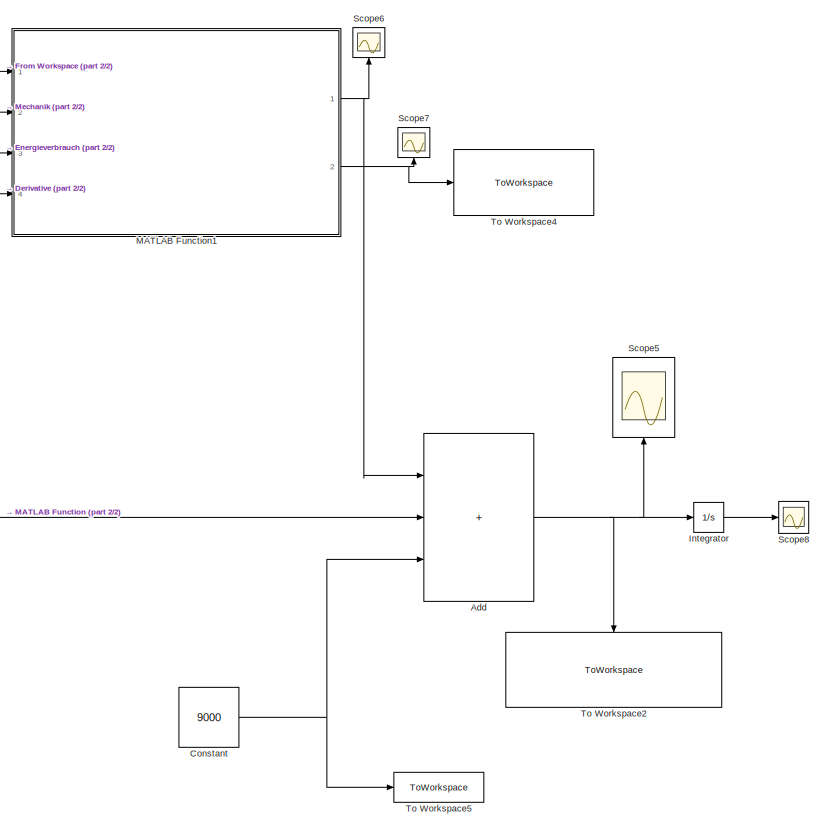
[diagram: root canvas - part 1/2, right side, full height]
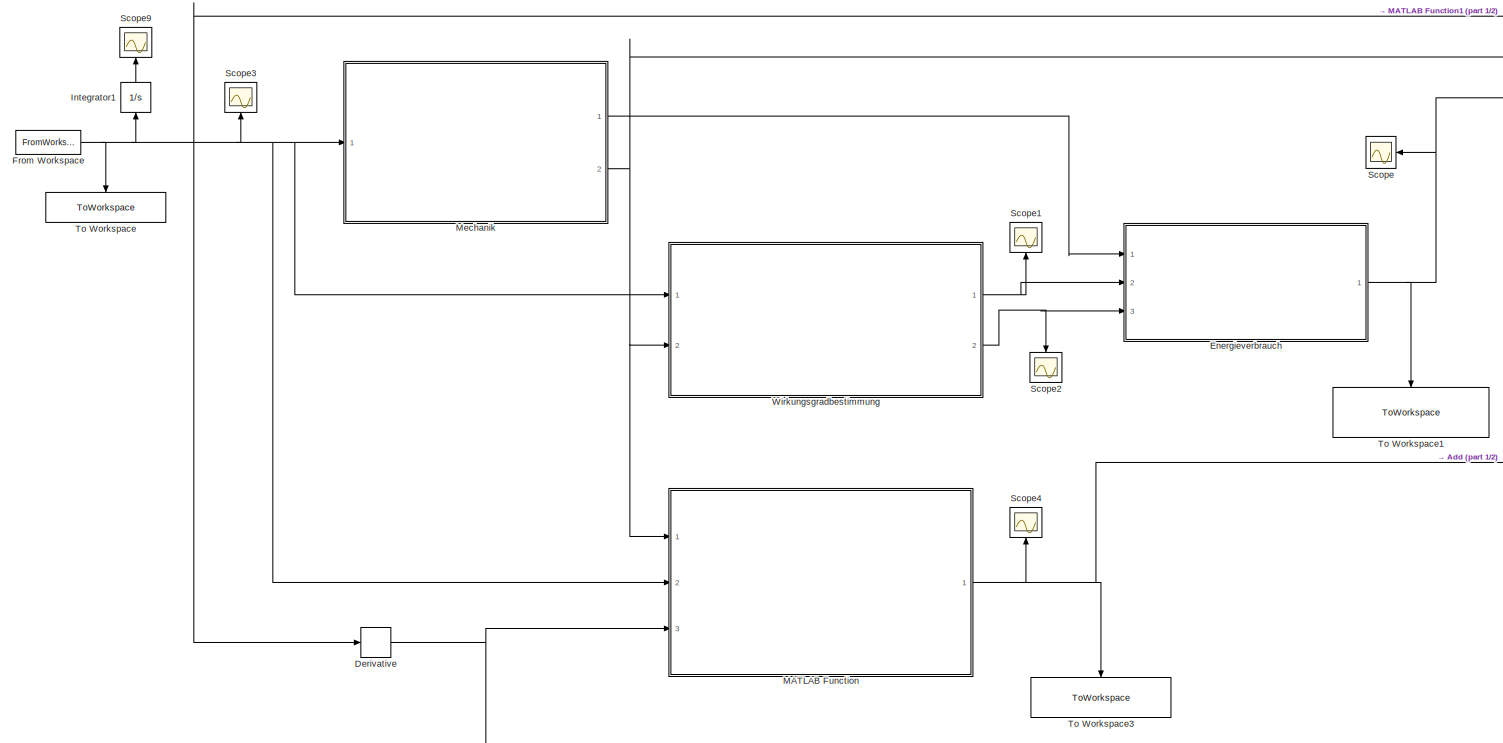
[diagram: root canvas - part 2/2, left side, full height]
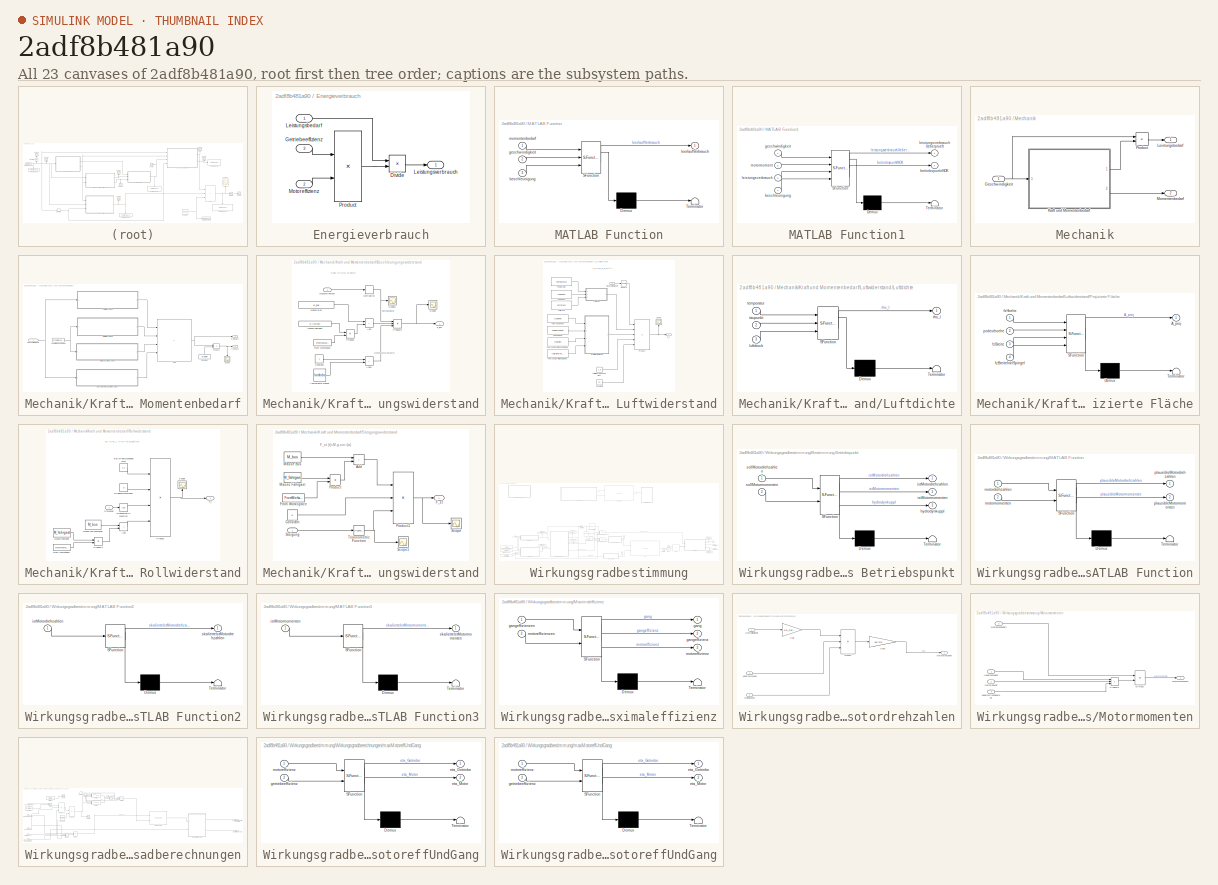
[diagram: thumbnail index - all 23 canvases of the model, root first then tree order]
MODEL slx_2adf8b481a90
KIND model
CONFIG AbsTol = auto
CONFIG EnableMultiTasking = off
CONFIG FixedStep = 1
CONFIG MaxStep = auto
CONFIG MinStep = auto
CONFIG RelTol = 1e-3
CONFIG SampleTimeConstraint = Unconstrained
CONFIG SolverName = FixedStepAuto
CONFIG StartTime = 0.0
CONFIG StopTime = simtime
BLOCK [Sum] Add
  IconShape = rectangular
  Inputs = +++
  Ports = [3, 1]
BLOCK [Constant] Constant
  Value = 9000
BLOCK [Derivative] Derivative
BLOCK [SubSystem] Energieverbrauch
  Ports = [3, 1]
  RequestExecContextInheritance = off
BLOCK [Product] Energieverbrauch/Divide
  Inputs = */
  Ports = [2, 1]
BLOCK [Inport] Energieverbrauch/Getriebeeffizienz
  Port = 3
BLOCK [Inport] Energieverbrauch/Leistungsbedarf
BLOCK [Outport] Energieverbrauch/Leistungsverbrauch
BLOCK [Inport] Energieverbrauch/Motoreffizienz
  Port = 2
BLOCK [Product] Energieverbrauch/Product
  Ports = [2, 1]
BLOCK [FromWorkspace] From Workspace
  VariableName = Geschwindigkeit
BLOCK [Integrator] Integrator
  Ports = [1, 1]
BLOCK [Integrator] Integrator1
  NameLocation = right
  Ports = [1, 1]
BLOCK [SubSystem] MATLAB Function
  ErrorFcn = Stateflow.Translate.translate
  PermitHierarchicalResolution = ExplicitOnly
  Ports = [3, 1]
  RequestExecContextInheritance = off
  SFBlockType = MATLAB Function
  TreatAsAtomicUnit = on
BLOCK [Demux] MATLAB Function/ Demux 
  Outputs = 1
  Ports = [1, 1]
BLOCK [S-Function] MATLAB Function/ SFunction 
  EnableBusSupport = on
  FunctionName = sf_sfun
  PortCounts = [3 2]
  Ports = [3, 2]
  SFcnIsStateOwnerBlock = off
  SFunctionDeploymentMode = off
  Tag = Stateflow S-Function 10
BLOCK [Terminator] MATLAB Function/ Terminator 
BLOCK [Inport] MATLAB Function/beschleunigung
  Port = 3
BLOCK [Inport] MATLAB Function/geschwindigkeit
  Port = 2
BLOCK [Outport] MATLAB Function/leerlaufVerbrauch
BLOCK [Inport] MATLAB Function/momentenbedarf
BLOCK [SubSystem] MATLAB Function1
  ErrorFcn = Stateflow.Translate.translate
  PermitHierarchicalResolution = ExplicitOnly
  Ports = [4, 2]
  RequestExecContextInheritance = off
  SFBlockType = MATLAB Function
  TreatAsAtomicUnit = on
BLOCK [Demux] MATLAB Function1/ Demux 
  Outputs = 1
  Ports = [1, 1]
BLOCK [S-Function] MATLAB Function1/ SFunction 
  EnableBusSupport = on
  FunctionName = sf_sfun
  PortCounts = [4 3]
  Ports = [4, 3]
  SFcnIsStateOwnerBlock = off
  SFunctionDeploymentMode = off
  Tag = Stateflow S-Function 11
BLOCK [Terminator] MATLAB Function1/ Terminator 
BLOCK [Inport] MATLAB Function1/beschleunigung
  Port = 4
BLOCK [Outport] MATLAB Function1/betriebspunktNOK
  Port = 2
BLOCK [Inport] MATLAB Function1/geschwindigkeit
BLOCK [Inport] MATLAB Function1/leistungsverbrauch
  Port = 3
BLOCK [Outport] MATLAB Function1/leistungsverbrauchUeberprueft
BLOCK [Inport] MATLAB Function1/motormoment
  Port = 2
BLOCK [SubSystem] Mechanik
  Ports = [1, 2]
  RequestExecContextInheritance = off
BLOCK [Inport] Mechanik/Geschwindigkeit
BLOCK [SubSystem] Mechanik/Kraft und Momentenbedarf
  Ports = [1, 2]
  RequestExecContextInheritance = off
BLOCK [Sum] Mechanik/Kraft und Momentenbedarf/Add
  IconShape = rectangular
  Inputs = ++++
  Ports = [4, 1]
BLOCK [SubSystem] Mechanik/Kraft und Momentenbedarf/Beschleunigungswiderstand
  Ports = [1, 1]
  RequestExecContextInheritance = off
BLOCK [Sum] Mechanik/Kraft und Momentenbedarf/Beschleunigungswiderstand/Add
  IconShape = rectangular
  Ports = [2, 1]
BLOCK [Sum] Mechanik/Kraft und Momentenbedarf/Beschleunigungswiderstand/Add1
  IconShape = rectangular
  Ports = [2, 1]
BLOCK [Constant] Mechanik/Kraft und Momentenbedarf/Beschleunigungswiderstand/Constant
BLOCK [Derivative] Mechanik/Kraft und Momentenbedarf/Beschleunigungswiderstand/Derivative
BLOCK [Outport] Mechanik/Kraft und Momentenbedarf/Beschleunigungswiderstand/F_acc
BLOCK [FromWorkspace] Mechanik/Kraft und Momentenbedarf/Beschleunigungswiderstand/From Workspace
  VariableName = Fahrgaeste
BLOCK [Inport] Mechanik/Kraft und Momentenbedarf/Beschleunigungswiderstand/Geschwindikeit
BLOCK [Constant] Mechanik/Kraft und Momentenbedarf/Beschleunigungswiderstand/Masse Bus
  Value = M_bus
BLOCK [Constant] Mechanik/Kraft und Momentenbedarf/Beschleunigungswiderstand/Masse Fahrgast
  Value = M_fahrgast
BLOCK [Product] Mechanik/Kraft und Momentenbedarf/Beschleunigungswiderstand/Product
  Ports = [2, 1]
BLOCK [Product] Mechanik/Kraft und Momentenbedarf/Beschleunigungswiderstand/Product1
  Inputs = 3
  Ports = [3, 1]
BLOCK [Scope] Mechanik/Kraft und Momentenbedarf/Beschleunigungswiderstand/Scope
  Floating = off
  NumInputPorts = 1
  Ports = [1]
  ScopeSpecificationString = Simulink.scopes.TimeScopeBlockCfg('CurrentConfiguration', extmgr.ConfigurationSet(extmgr.Configuration('Core','General UI',true),extmgr.Configuration('Core','Source UI',true),extmgr.Configuration('Sources','WiredSimulink',true,'DataLoggingVariableName','ScopeData2'),extmgr.Configuration('Visuals','Time Domain',true,'SerializedDisplays',{struct('MinYLimReal','-16033.9878','MaxYLimReal','17945.14753...<+1431ch>
BLOCK [Scope] Mechanik/Kraft und Momentenbedarf/Beschleunigungswiderstand/Scope1
  Floating = off
  NumInputPorts = 1
  Ports = [1]
  ScopeSpecificationString = Simulink.scopes.TimeScopeBlockCfg('CurrentConfiguration', extmgr.ConfigurationSet(extmgr.Configuration('Core','General UI',true),extmgr.Configuration('Core','Source UI',true),extmgr.Configuration('Sources','WiredSimulink',true,'DataLoggingVariableName','ScopeData1'),extmgr.Configuration('Visuals','Time Domain',true,'SerializedDisplays',{struct('MinYLimReal','-0.97178','MaxYLimReal','1.09242','YLab...<+1408ch>
BLOCK [Constant] Mechanik/Kraft und Momentenbedarf/Beschleunigungswiderstand/Äquivalente Masse
  Value = lambda
BLOCK [Constant] Mechanik/Kraft und Momentenbedarf/Constant
  NameLocation = right
  Value = R_Reifen
BLOCK [Outport] Mechanik/Kraft und Momentenbedarf/F_Bedarf
BLOCK [FromWorkspace] Mechanik/Kraft und Momentenbedarf/From Workspace
  VariableName = timeseries(Steigung)
BLOCK [Inport] Mechanik/Kraft und Momentenbedarf/Geschwindigkeit
BLOCK [SubSystem] Mechanik/Kraft und Momentenbedarf/Luftwiderstand
  Ports = [1, 1]
  RequestExecContextInheritance = off
BLOCK [Constant] Mechanik/Kraft und Momentenbedarf/Luftwiderstand/Constant3
  Value = 0.5
BLOCK [Outport] Mechanik/Kraft und Momentenbedarf/Luftwiderstand/F_l
BLOCK [Constant] Mechanik/Kraft und Momentenbedarf/Luftwiderstand/Fahrzeugbreite inkl. Spiegel
  Value = fzBreiteInklSpiegel
BLOCK [Constant] Mechanik/Kraft und Momentenbedarf/Luftwiderstand/Fahrzeugbreite ohne Spiegel
  Value = fzBreite
BLOCK [Constant] Mechanik/Kraft und Momentenbedarf/Luftwiderstand/Fahrzeughöhe
  Value = fzHoehe
BLOCK [Inport] Mechanik/Kraft und Momentenbedarf/Luftwiderstand/Geschwindigkeit
BLOCK [SubSystem] Mechanik/Kraft und Momentenbedarf/Luftwiderstand/Luftdichte
  ErrorFcn = Stateflow.Translate.translate
  PermitHierarchicalResolution = ExplicitOnly
  Ports = [3, 1]
  RequestExecContextInheritance = off
  SFBlockType = MATLAB Function
  TreatAsAtomicUnit = on
BLOCK [Demux] Mechanik/Kraft und Momentenbedarf/Luftwiderstand/Luftdichte/ Demux 
  Outputs = 1
  Ports = [1, 1]
BLOCK [S-Function] Mechanik/Kraft und Momentenbedarf/Luftwiderstand/Luftdichte/ SFunction 
  EnableBusSupport = on
  FunctionName = sf_sfun
  PortCounts = [3 2]
  Ports = [3, 2]
  SFcnIsStateOwnerBlock = off
  SFunctionDeploymentMode = off
  Tag = Stateflow S-Function 2
BLOCK [Terminator] Mechanik/Kraft und Momentenbedarf/Luftwiderstand/Luftdichte/ Terminator 
BLOCK [Inport] Mechanik/Kraft und Momentenbedarf/Luftwiderstand/Luftdichte/luftdruck
  Port = 3
BLOCK [Outport] Mechanik/Kraft und Momentenbedarf/Luftwiderstand/Luftdichte/rho_l
BLOCK [Inport] Mechanik/Kraft und Momentenbedarf/Luftwiderstand/Luftdichte/taupunkt
  Port = 2
BLOCK [Inport] Mechanik/Kraft und Momentenbedarf/Luftwiderstand/Luftdichte/temperatur
BLOCK [Constant] Mechanik/Kraft und Momentenbedarf/Luftwiderstand/Luftdruck
  Value = luftdruck
BLOCK [Constant] Mechanik/Kraft und Momentenbedarf/Luftwiderstand/Luftwiderstandsbeiwert
  Value = c_d
BLOCK [Constant] Mechanik/Kraft und Momentenbedarf/Luftwiderstand/Podesthöhe
  Value = podesthoehe
BLOCK [Product] Mechanik/Kraft und Momentenbedarf/Luftwiderstand/Product
  Inputs = 5
  Ports = [5, 1]
BLOCK [SubSystem] Mechanik/Kraft und Momentenbedarf/Luftwiderstand/Projizierte Fläche
  ErrorFcn = Stateflow.Translate.translate
  PermitHierarchicalResolution = ExplicitOnly
  Ports = [4, 1]
  RequestExecContextInheritance = off
  SFBlockType = MATLAB Function
  TreatAsAtomicUnit = on
BLOCK [Demux] Mechanik/Kraft und Momentenbedarf/Luftwiderstand/Projizierte Fläche/ Demux 
  Outputs = 1
  Ports = [1, 1]
BLOCK [S-Function] Mechanik/Kraft und Momentenbedarf/Luftwiderstand/Projizierte Fläche/ SFunction 
  EnableBusSupport = on
  FunctionName = sf_sfun
  PortCounts = [4 2]
  Ports = [4, 2]
  SFcnIsStateOwnerBlock = off
  SFunctionDeploymentMode = off
  Tag = Stateflow S-Function 1
BLOCK [Terminator] Mechanik/Kraft und Momentenbedarf/Luftwiderstand/Projizierte Fläche/ Terminator 
BLOCK [Outport] Mechanik/Kraft und Momentenbedarf/Luftwiderstand/Projizierte Fläche/A_proj
BLOCK [Inport] Mechanik/Kraft und Momentenbedarf/Luftwiderstand/Projizierte Fläche/fzBreite
  Port = 3
BLOCK [Inport] Mechanik/Kraft und Momentenbedarf/Luftwiderstand/Projizierte Fläche/fzBreiteInklSpiegel
  Port = 4
BLOCK [Inport] Mechanik/Kraft und Momentenbedarf/Luftwiderstand/Projizierte Fläche/fzHoehe
BLOCK [Inport] Mechanik/Kraft und Momentenbedarf/Luftwiderstand/Projizierte Fläche/podesthoehe
  Port = 2
BLOCK [Scope] Mechanik/Kraft und Momentenbedarf/Luftwiderstand/Scope
  Floating = off
  NameLocation = right
  NumInputPorts = 1
  Ports = [1]
  ScopeSpecificationString = Simulink.scopes.TimeScopeBlockCfg('CurrentConfiguration', extmgr.ConfigurationSet(extmgr.Configuration('Core','General UI',true),extmgr.Configuration('Core','Source UI',true),extmgr.Configuration('Sources','WiredSimulink',true,'DataLoggingVariableName','ScopeData1'),extmgr.Configuration('Visuals','Time Domain',true,'SerializedDisplays',{struct('MinYLimReal','-74.87994','MaxYLimReal','673.91945','Y...<+1411ch>
BLOCK [Math] Mechanik/Kraft und Momentenbedarf/Luftwiderstand/Square
  Operator = square
  Ports = [1, 1]
BLOCK [Constant] Mechanik/Kraft und Momentenbedarf/Luftwiderstand/Taupunkt
  Value = taupunkt
BLOCK [Constant] Mechanik/Kraft und Momentenbedarf/Luftwiderstand/Temperatur
  Value = temperatur
BLOCK [Product] Mechanik/Kraft und Momentenbedarf/Product
  Ports = [2, 1]
BLOCK [SubSystem] Mechanik/Kraft und Momentenbedarf/Rollwiderstand
  Ports = [1, 1]
  RequestExecContextInheritance = off
BLOCK [Sum] Mechanik/Kraft und Momentenbedarf/Rollwiderstand/Add
  IconShape = rectangular
  Ports = [2, 1]
BLOCK [Constant] Mechanik/Kraft und Momentenbedarf/Rollwiderstand/Erdbeschleunigung
  Value = g
BLOCK [Outport] Mechanik/Kraft und Momentenbedarf/Rollwiderstand/F_r
BLOCK [FromWorkspace] Mechanik/Kraft und Momentenbedarf/Rollwiderstand/From Workspace
  VariableName = Fahrgaeste
BLOCK [Constant] Mechanik/Kraft und Momentenbedarf/Rollwiderstand/Masse Fahrgast
  Value = M_fahrgast
BLOCK [Constant] Mechanik/Kraft und Momentenbedarf/Rollwiderstand/Masse von Fahrzeug
  Value = M_bus
BLOCK [Product] Mechanik/Kraft und Momentenbedarf/Rollwiderstand/Product
  Inputs = 4
  Ports = [4, 1]
BLOCK [Product] Mechanik/Kraft und Momentenbedarf/Rollwiderstand/Product1
  Ports = [2, 1]
BLOCK [Constant] Mechanik/Kraft und Momentenbedarf/Rollwiderstand/Rollwiderstandsbeiwert
  Value = c_r
BLOCK [Scope] Mechanik/Kraft und Momentenbedarf/Rollwiderstand/Scope
  Floating = off
  NameLocation = right
  NumInputPorts = 1
  Ports = [1]
  ScopeSpecificationString = Simulink.scopes.TimeScopeBlockCfg('CurrentConfiguration', extmgr.ConfigurationSet(extmgr.Configuration('Core','General UI',true),extmgr.Configuration('Core','Source UI',true),extmgr.Configuration('Sources','WiredSimulink',true,'DataLoggingVariableName','ScopeData2'),extmgr.Configuration('Visuals','Time Domain',true,'SerializedDisplays',{struct('MinYLimReal','1216.62285','MaxYLimReal','1302.52967',...<+1420ch>
BLOCK [Inport] Mechanik/Kraft und Momentenbedarf/Rollwiderstand/Steigung
BLOCK [Trigonometry] Mechanik/Kraft und Momentenbedarf/Rollwiderstand/Trigonometric Function
  Operator = cos
  Ports = [1, 1]
BLOCK [Scope] Mechanik/Kraft und Momentenbedarf/Scope
  Floating = off
  NameLocation = left
  NumInputPorts = 1
  Ports = [1]
  ScopeSpecificationString = Simulink.scopes.TimeScopeBlockCfg('CurrentConfiguration', extmgr.ConfigurationSet(extmgr.Configuration('Core','General UI',true),extmgr.Configuration('Core','Source UI',true),extmgr.Configuration('Sources','WiredSimulink',true,'DataLoggingVariableName','ScopeData1'),extmgr.Configuration('Visuals','Time Domain',true,'SerializedDisplays',{struct('MinYLimReal','-9200.63235','MaxYLimReal','12159.77074...<+1421ch>
BLOCK [SubSystem] Mechanik/Kraft und Momentenbedarf/Steigungswiderstand
  Ports = [1, 1]
  RequestExecContextInheritance = off
BLOCK [Sum] Mechanik/Kraft und Momentenbedarf/Steigungswiderstand/Add
  IconShape = rectangular
  Ports = [2, 1]
BLOCK [Constant] Mechanik/Kraft und Momentenbedarf/Steigungswiderstand/Constant
  Value = g
BLOCK [Outport] Mechanik/Kraft und Momentenbedarf/Steigungswiderstand/F_st
BLOCK [FromWorkspace] Mechanik/Kraft und Momentenbedarf/Steigungswiderstand/From Workspace
  VariableName = Fahrgaeste
BLOCK [Constant] Mechanik/Kraft und Momentenbedarf/Steigungswiderstand/Masse Bus
  Value = M_bus
BLOCK [Constant] Mechanik/Kraft und Momentenbedarf/Steigungswiderstand/Masse Fahrgast
  Value = M_fahrgast
BLOCK [Product] Mechanik/Kraft und Momentenbedarf/Steigungswiderstand/Product
  Ports = [2, 1]
BLOCK [Product] Mechanik/Kraft und Momentenbedarf/Steigungswiderstand/Product1
  Inputs = 3
  Ports = [3, 1]
BLOCK [Scope] Mechanik/Kraft und Momentenbedarf/Steigungswiderstand/Scope
  Floating = off
  NumInputPorts = 1
  Ports = [1]
  ScopeSpecificationString = Simulink.scopes.TimeScopeBlockCfg('CurrentConfiguration', extmgr.ConfigurationSet(extmgr.Configuration('Core','General UI',true),extmgr.Configuration('Core','Source UI',true),extmgr.Configuration('Sources','WiredSimulink',true,'DataLoggingVariableName','ScopeData3'),extmgr.Configuration('Visuals','Time Domain',true,'SerializedDisplays',{struct('MinYLimReal','-11979.01378','MaxYLimReal','10690.7534...<+1430ch>
BLOCK [Scope] Mechanik/Kraft und Momentenbedarf/Steigungswiderstand/Scope1
  Floating = off
  NumInputPorts = 1
  Ports = [1]
  ScopeSpecificationString = Simulink.scopes.TimeScopeBlockCfg('CurrentConfiguration', extmgr.ConfigurationSet(extmgr.Configuration('Core','General UI',true),extmgr.Configuration('Core','Source UI',true),extmgr.Configuration('Sources','WiredSimulink',true,'DataLoggingVariableName','ScopeData4'),extmgr.Configuration('Visuals','Time Domain',true,'SerializedDisplays',{struct('MinYLimReal','-0.09417','MaxYLimReal','0.08477','YLab...<+1416ch>
BLOCK [Inport] Mechanik/Kraft und Momentenbedarf/Steigungswiderstand/Steigung
BLOCK [Trigonometry] Mechanik/Kraft und Momentenbedarf/Steigungswiderstand/Trigonometric Function
  Ports = [1, 1]
BLOCK [Outport] Mechanik/Kraft und Momentenbedarf/T_bedarf
  Port = 2
BLOCK [Outport] Mechanik/Leistungsbedarf
BLOCK [Outport] Mechanik/Momentenbedarf
  Port = 2
BLOCK [Product] Mechanik/Product
  Ports = [2, 1]
BLOCK [Scope] Scope
  Floating = off
  NameLocation = top
  NumInputPorts = 1
  Ports = [1]
  ScopeSpecificationString = Simulink.scopes.TimeScopeBlockCfg('CurrentConfiguration', extmgr.ConfigurationSet(extmgr.Configuration('Core','General UI',true),extmgr.Configuration('Core','Source UI',true),extmgr.Configuration('Sources','WiredSimulink',true),extmgr.Configuration('Visuals','Time Domain',true,'SerializedDisplays',{struct('MinYLimReal','-6089.10696','MaxYLimReal','54801.96266','YLabelReal','','MinYLimMag','  0.000...<+1396ch>
BLOCK [Scope] Scope1
  Floating = off
  NameLocation = right
  NumInputPorts = 1
  Ports = [1]
  ScopeSpecificationString = Simulink.scopes.TimeScopeBlockCfg('CurrentConfiguration', extmgr.ConfigurationSet(extmgr.Configuration('Core','General UI',true),extmgr.Configuration('Core','Source UI',true),extmgr.Configuration('Sources','WiredSimulink',true,'DataLoggingVariableName','ScopeData2'),extmgr.Configuration('Visuals','Time Domain',true,'SerializedDisplays',{struct('MinYLimReal','-0.49743','MaxYLimReal','1.86175','YLab...<+1442ch>
BLOCK [Scope] Scope2
  Floating = off
  NameLocation = left
  NumInputPorts = 1
  Ports = [1]
  ScopeSpecificationString = Simulink.scopes.TimeScopeBlockCfg('CurrentConfiguration', extmgr.ConfigurationSet(extmgr.Configuration('Core','General UI',true),extmgr.Configuration('Core','Source UI',true),extmgr.Configuration('Sources','WiredSimulink',true,'DataLoggingVariableName','ScopeData3'),extmgr.Configuration('Visuals','Time Domain',true,'SerializedDisplays',{struct('MinYLimReal','-0.11827','MaxYLimReal','1.12131','YLab...<+1436ch>
BLOCK [Scope] Scope3
  Floating = off
  NameLocation = right
  NumInputPorts = 1
  Ports = [1]
  ScopeSpecificationString = Simulink.scopes.TimeScopeBlockCfg('CurrentConfiguration', extmgr.ConfigurationSet(extmgr.Configuration('Core','General UI',true),extmgr.Configuration('Core','Source UI',true),extmgr.Configuration('Sources','WiredSimulink',true,'DataLoggingVariableName','ScopeData3'),extmgr.Configuration('Visuals','Time Domain',true,'SerializedDisplays',{struct('MinYLimReal','-2.09225','MaxYLimReal','18.83025','YLa...<+1409ch>
BLOCK [Scope] Scope4
  Floating = off
  NameLocation = right
  NumInputPorts = 1
  Ports = [1]
  ScopeSpecificationString = Simulink.scopes.TimeScopeBlockCfg('CurrentConfiguration', extmgr.ConfigurationSet(extmgr.Configuration('Core','General UI',true),extmgr.Configuration('Core','Source UI',true),extmgr.Configuration('Sources','WiredSimulink',true,'DataLoggingVariableName','ScopeData3'),extmgr.Configuration('Visuals','Time Domain',true,'SerializedDisplays',{struct('MinYLimReal','-1338.75','MaxYLimReal','12048.75','YLa...<+1417ch>
BLOCK [Scope] Scope5
  Floating = off
  NameLocation = right
  NumInputPorts = 1
  Ports = [1]
  ScopeSpecificationString = Simulink.scopes.TimeScopeBlockCfg('CurrentConfiguration', extmgr.ConfigurationSet(extmgr.Configuration('Core','General UI',true),extmgr.Configuration('Core','Source UI',true),extmgr.Configuration('Sources','WiredSimulink',true,'DataLoggingVariableName','ScopeData4'),extmgr.Configuration('Visuals','Time Domain',true,'SerializedDisplays',{struct('MinYLimReal','-6089.10696','MaxYLimReal','54801.96266...<+1417ch>
BLOCK [Scope] Scope6
  Floating = off
  NameLocation = right
  NumInputPorts = 1
  Ports = [1]
  ScopeSpecificationString = Simulink.scopes.TimeScopeBlockCfg('CurrentConfiguration', extmgr.ConfigurationSet(extmgr.Configuration('Core','General UI',true),extmgr.Configuration('Core','Source UI',true),extmgr.Configuration('Sources','WiredSimulink',true,'DataLoggingVariableName','ScopeData5'),extmgr.Configuration('Visuals','Time Domain',true,'SerializedDisplays',{struct('MinYLimReal','-6089.10696','MaxYLimReal','54801.96266...<+1462ch>
BLOCK [Scope] Scope7
  Floating = off
  NameLocation = right
  NumInputPorts = 1
  Ports = [1]
  ScopeSpecificationString = Simulink.scopes.TimeScopeBlockCfg('CurrentConfiguration', extmgr.ConfigurationSet(extmgr.Configuration('Core','General UI',true),extmgr.Configuration('Core','Source UI',true),extmgr.Configuration('Sources','WiredSimulink',true,'DataLoggingVariableName','ScopeData6'),extmgr.Configuration('Visuals','Time Domain',true,'SerializedDisplays',{struct('MinYLimReal','-0.125','MaxYLimReal','1.125','YLabelRe...<+1413ch>
BLOCK [Scope] Scope8
  Floating = off
  NumInputPorts = 1
  Ports = [1]
  ScopeSpecificationString = Simulink.scopes.TimeScopeBlockCfg('CurrentConfiguration', extmgr.ConfigurationSet(extmgr.Configuration('Core','General UI',true),extmgr.Configuration('Core','Source UI',true),extmgr.Configuration('Sources','WiredSimulink',true,'DataLoggingVariableName','ScopeData7'),extmgr.Configuration('Visuals','Time Domain',true,'SerializedDisplays',{struct('MinYLimReal','-2354944.68315','MaxYLimReal','21194502...<+1419ch>
BLOCK [Scope] Scope9
  Floating = off
  NameLocation = right
  NumInputPorts = 1
  Ports = [1]
  ScopeSpecificationString = Simulink.scopes.TimeScopeBlockCfg('CurrentConfiguration', extmgr.ConfigurationSet(extmgr.Configuration('Core','General UI',true),extmgr.Configuration('Core','Source UI',true),extmgr.Configuration('Sources','WiredSimulink',true,'DataLoggingVariableName','ScopeData1'),extmgr.Configuration('Visuals','Time Domain',true,'SerializedDisplays',{struct('MinYLimReal','-1093.68283','MaxYLimReal','9843.1455',...<+1388ch>
BLOCK [ToWorkspace] To Workspace
  FixptAsFi = on
  MaxDataPoints = inf
  NameLocation = left
  Ports = [1]
  SampleTime = -1
  SaveFormat = Timeseries
  VariableName = simulinkGeschwindigkeit
BLOCK [ToWorkspace] To Workspace1
  FixptAsFi = on
  MaxDataPoints = inf
  NameLocation = left
  Ports = [1]
  SampleTime = -1
  SaveFormat = Timeseries
  VariableName = Leistungsverbrauch
BLOCK [ToWorkspace] To Workspace2
  FixptAsFi = on
  MaxDataPoints = inf
  NameLocation = left
  Ports = [1]
  SampleTime = -1
  SaveFormat = Timeseries
  VariableName = LeistungsverbrauchGesamt
BLOCK [ToWorkspace] To Workspace3
  FixptAsFi = on
  MaxDataPoints = inf
  NameLocation = left
  Ports = [1]
  SampleTime = -1
  SaveFormat = Timeseries
  VariableName = Leerlaufverbrauch
BLOCK [ToWorkspace] To Workspace4
  FixptAsFi = on
  MaxDataPoints = inf
  Ports = [1]
  SampleTime = -1
  SaveFormat = Timeseries
  VariableName = betriebspunktNOK
BLOCK [ToWorkspace] To Workspace5
  FixptAsFi = on
  MaxDataPoints = inf
  Ports = [1]
  SampleTime = -1
  SaveFormat = Timeseries
  VariableName = Nebenverbraucher
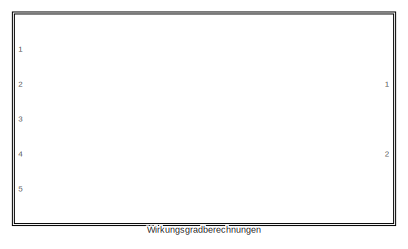
[diagram: Wirkungsgradbestimmung - part 1/7, top left region]
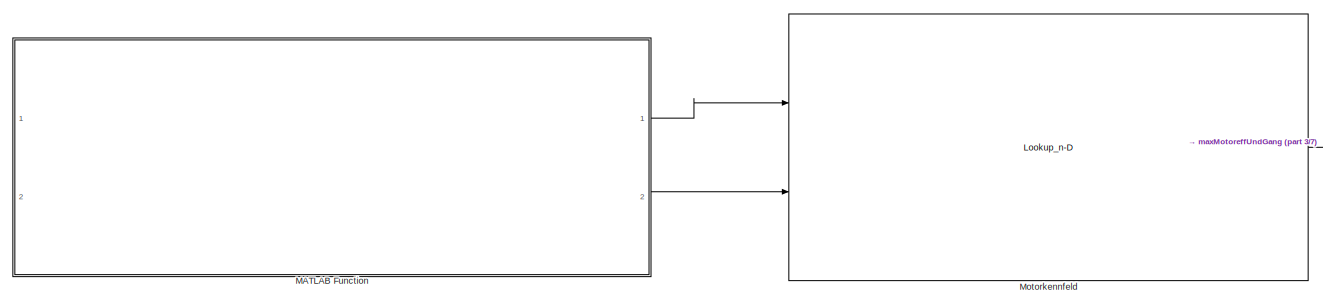
[diagram: Wirkungsgradbestimmung - part 2/7, top center region]
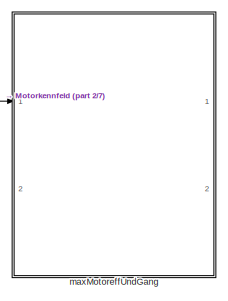
[diagram: Wirkungsgradbestimmung - part 3/7, top right region]
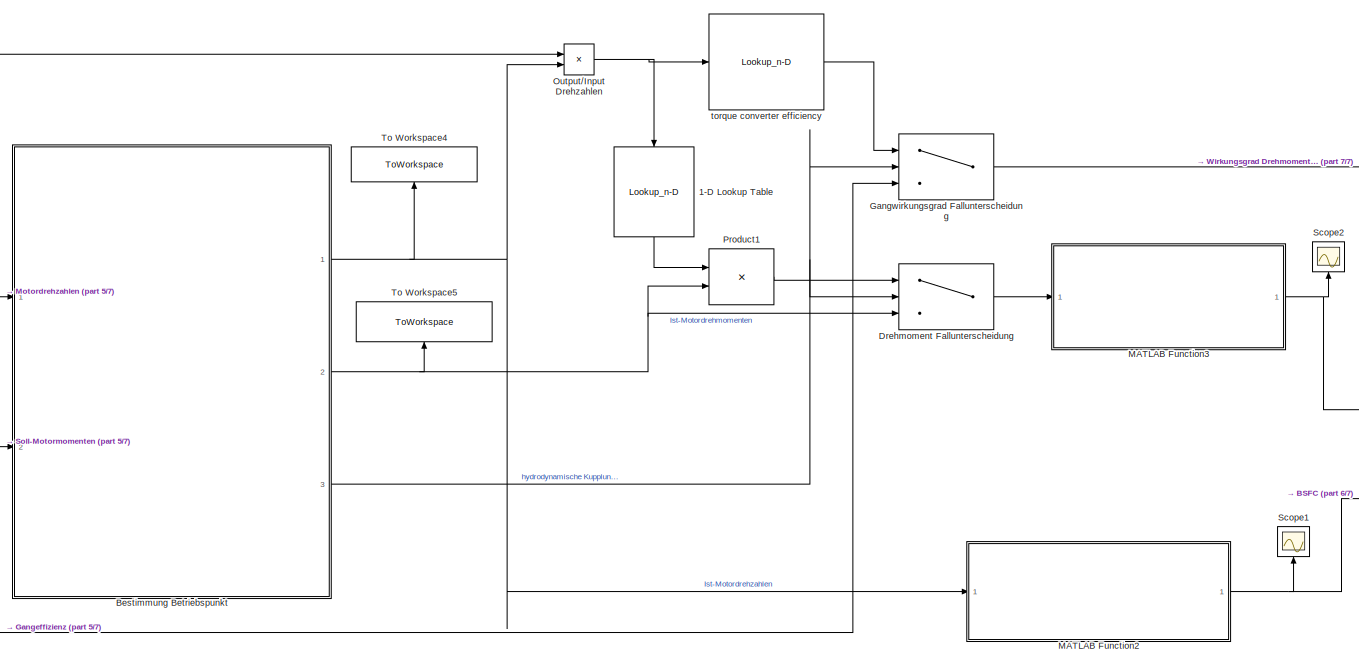
[diagram: Wirkungsgradbestimmung - part 4/7, bottom center region]
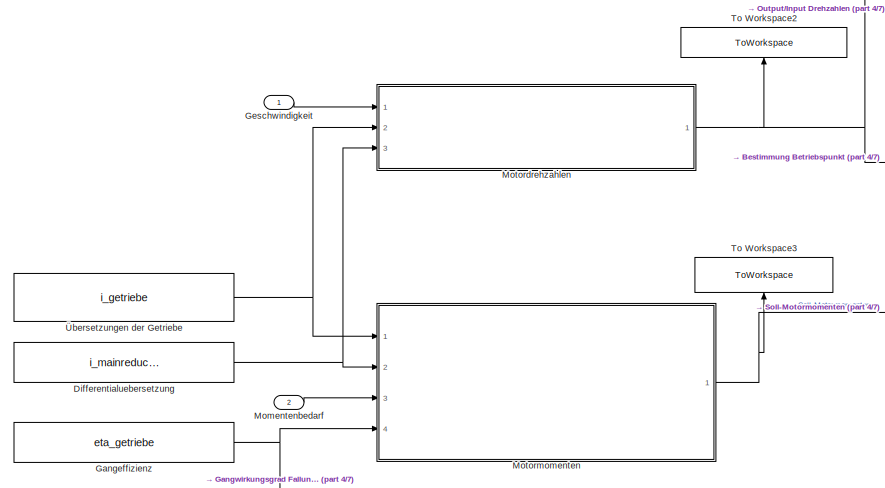
[diagram: Wirkungsgradbestimmung - part 5/7, bottom left region]
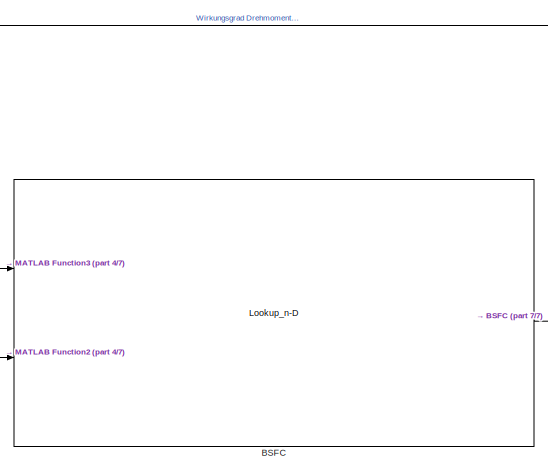
[diagram: Wirkungsgradbestimmung - part 6/7, bottom center region]
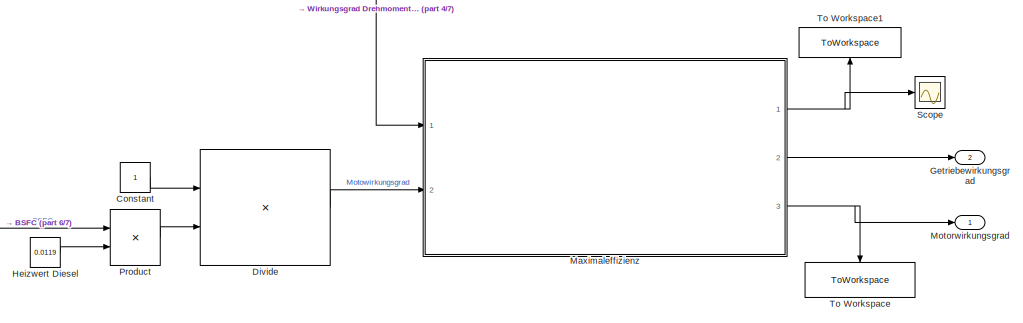
[diagram: Wirkungsgradbestimmung - part 7/7, bottom right region]
BLOCK [SubSystem] Wirkungsgradbestimmung
  Ports = [2, 2]
  RequestExecContextInheritance = off
BLOCK [Lookup_n-D] Wirkungsgradbestimmung/1-D Lookup Table
  BreakpointsForDimension1 = tr_speed_ratio
  InputPortMap = u0
  InternalRulePriority = Speed
  NameLocation = left
  NumberOfTableDimensions = 1
  Ports = [1, 1]
  RndMeth = Simplest
  Table = tr_torque_ratio
BLOCK [Lookup_n-D] Wirkungsgradbestimmung/BSFC
  BreakpointsForDimension1 = [1:91]
  BreakpointsForDimension2 = [1:166]
  InputPortMap = u0,u1
  InternalRulePriority = Speed
  Ports = [2, 1]
  RndMeth = Simplest
  Table = kennfeld
BLOCK [SubSystem] Wirkungsgradbestimmung/Bestimmung Betriebspunkt
  ErrorFcn = Stateflow.Translate.translate
  PermitHierarchicalResolution = ExplicitOnly
  Ports = [2, 3]
  RequestExecContextInheritance = off
  SFBlockType = MATLAB Function
  TreatAsAtomicUnit = on
BLOCK [Demux] Wirkungsgradbestimmung/Bestimmung Betriebspunkt/ Demux 
  Outputs = 1
  Ports = [1, 1]
BLOCK [S-Function] Wirkungsgradbestimmung/Bestimmung Betriebspunkt/ SFunction 
  EnableBusSupport = on
  FunctionName = sf_sfun
  PortCounts = [2 4]
  Ports = [2, 4]
  SFcnIsStateOwnerBlock = off
  SFunctionDeploymentMode = off
  Tag = Stateflow S-Function 6
BLOCK [Terminator] Wirkungsgradbestimmung/Bestimmung Betriebspunkt/ Terminator 
BLOCK [Outport] Wirkungsgradbestimmung/Bestimmung Betriebspunkt/hydrodynkuppl
  Port = 3
BLOCK [Outport] Wirkungsgradbestimmung/Bestimmung Betriebspunkt/istMotordrehzahlen
BLOCK [Outport] Wirkungsgradbestimmung/Bestimmung Betriebspunkt/istMotormomenten
  Port = 2
BLOCK [Inport] Wirkungsgradbestimmung/Bestimmung Betriebspunkt/sollMotordrehzahlen
BLOCK [Inport] Wirkungsgradbestimmung/Bestimmung Betriebspunkt/sollMotormomenten
  Port = 2
BLOCK [Constant] Wirkungsgradbestimmung/Constant
BLOCK [Constant] Wirkungsgradbestimmung/Differentialuebersetzung
  Value = i_mainreducer
BLOCK [Product] Wirkungsgradbestimmung/Divide
  Inputs = */
  Ports = [2, 1]
BLOCK [Switch] Wirkungsgradbestimmung/Drehmoment Fallunterscheidung
  Criteria = u2 > Threshold
  InputSameDT = off
  SaturateOnIntegerOverflow = off
BLOCK [Constant] Wirkungsgradbestimmung/Gangeffizienz
  Value = eta_getriebe
BLOCK [Switch] Wirkungsgradbestimmung/Gangwirkungsgrad Fallunterscheidung
  Criteria = u2 > Threshold
  InputSameDT = off
  SaturateOnIntegerOverflow = off
BLOCK [Inport] Wirkungsgradbestimmung/Geschwindigkeit
BLOCK [Outport] Wirkungsgradbestimmung/Getriebewirkungsgrad
  Port = 2
BLOCK [Constant] Wirkungsgradbestimmung/Heizwert Diesel
  Value = 0.0119
BLOCK [SubSystem] Wirkungsgradbestimmung/MATLAB Function
  Commented = on
  ErrorFcn = Stateflow.Translate.translate
  PermitHierarchicalResolution = ExplicitOnly
  Ports = [2, 2]
  RequestExecContextInheritance = off
  SFBlockType = MATLAB Function
  TreatAsAtomicUnit = on
BLOCK [Demux] Wirkungsgradbestimmung/MATLAB Function/ Demux 
  Outputs = 1
  Ports = [1, 1]
BLOCK [S-Function] Wirkungsgradbestimmung/MATLAB Function/ SFunction 
  EnableBusSupport = on
  FunctionName = sf_sfun
  PortCounts = [2 3]
  Ports = [2, 3]
  SFcnIsStateOwnerBlock = off
  SFunctionDeploymentMode = off
  Tag = Stateflow S-Function 3
BLOCK [Terminator] Wirkungsgradbestimmung/MATLAB Function/ Terminator 
BLOCK [Inport] Wirkungsgradbestimmung/MATLAB Function/motordrehzahlen
BLOCK [Inport] Wirkungsgradbestimmung/MATLAB Function/motormomenten
  Port = 2
BLOCK [Outport] Wirkungsgradbestimmung/MATLAB Function/plausibleMotordrehzahlen
BLOCK [Outport] Wirkungsgradbestimmung/MATLAB Function/plausibleMotormomenten
  Port = 2
BLOCK [SubSystem] Wirkungsgradbestimmung/MATLAB Function2
  ErrorFcn = Stateflow.Translate.translate
  PermitHierarchicalResolution = ExplicitOnly
  Ports = [1, 1]
  RequestExecContextInheritance = off
  SFBlockType = MATLAB Function
  TreatAsAtomicUnit = on
BLOCK [Demux] Wirkungsgradbestimmung/MATLAB Function2/ Demux 
  Outputs = 1
  Ports = [1, 1]
BLOCK [S-Function] Wirkungsgradbestimmung/MATLAB Function2/ SFunction 
  EnableBusSupport = on
  FunctionName = sf_sfun
  PortCounts = [1 2]
  Ports = [1, 2]
  SFcnIsStateOwnerBlock = off
  SFunctionDeploymentMode = off
  Tag = Stateflow S-Function 9
BLOCK [Terminator] Wirkungsgradbestimmung/MATLAB Function2/ Terminator 
BLOCK [Inport] Wirkungsgradbestimmung/MATLAB Function2/istMotordrehzahlen
BLOCK [Outport] Wirkungsgradbestimmung/MATLAB Function2/skalierteIstMotordrehzahlen
BLOCK [SubSystem] Wirkungsgradbestimmung/MATLAB Function3
  ErrorFcn = Stateflow.Translate.translate
  PermitHierarchicalResolution = ExplicitOnly
  Ports = [1, 1]
  RequestExecContextInheritance = off
  SFBlockType = MATLAB Function
  TreatAsAtomicUnit = on
BLOCK [Demux] Wirkungsgradbestimmung/MATLAB Function3/ Demux 
  Outputs = 1
  Ports = [1, 1]
BLOCK [S-Function] Wirkungsgradbestimmung/MATLAB Function3/ SFunction 
  EnableBusSupport = on
  FunctionName = sf_sfun
  PortCounts = [1 2]
  Ports = [1, 2]
  SFcnIsStateOwnerBlock = off
  SFunctionDeploymentMode = off
  Tag = Stateflow S-Function 8
BLOCK [Terminator] Wirkungsgradbestimmung/MATLAB Function3/ Terminator 
BLOCK [Inport] Wirkungsgradbestimmung/MATLAB Function3/istMotormomenten
BLOCK [Outport] Wirkungsgradbestimmung/MATLAB Function3/skalierteIstMotormomenten
BLOCK [SubSystem] Wirkungsgradbestimmung/Maximaleffizienz
  ErrorFcn = Stateflow.Translate.translate
  PermitHierarchicalResolution = ExplicitOnly
  Ports = [2, 3]
  RequestExecContextInheritance = off
  SFBlockType = MATLAB Function
  TreatAsAtomicUnit = on
BLOCK [Demux] Wirkungsgradbestimmung/Maximaleffizienz/ Demux 
  Outputs = 1
  Ports = [1, 1]
BLOCK [S-Function] Wirkungsgradbestimmung/Maximaleffizienz/ SFunction 
  EnableBusSupport = on
  FunctionName = sf_sfun
  PortCounts = [2 4]
  Ports = [2, 4]
  SFcnIsStateOwnerBlock = off
  SFunctionDeploymentMode = off
  Tag = Stateflow S-Function 7
BLOCK [Terminator] Wirkungsgradbestimmung/Maximaleffizienz/ Terminator 
BLOCK [Outport] Wirkungsgradbestimmung/Maximaleffizienz/gang
BLOCK [Outport] Wirkungsgradbestimmung/Maximaleffizienz/gangeffizienz
  Port = 2
BLOCK [Inport] Wirkungsgradbestimmung/Maximaleffizienz/gangeffizienzen
BLOCK [Outport] Wirkungsgradbestimmung/Maximaleffizienz/motoreffizienz
  Port = 3
BLOCK [Inport] Wirkungsgradbestimmung/Maximaleffizienz/motoreffizienzen
  Port = 2
BLOCK [Inport] Wirkungsgradbestimmung/Momentenbedarf
  Port = 2
BLOCK [SubSystem] Wirkungsgradbestimmung/Motordrehzahlen
  Ports = [3, 1]
  RequestExecContextInheritance = off
BLOCK [Gain] Wirkungsgradbestimmung/Motordrehzahlen/Gain
  Gain = 1/R_Reifen
BLOCK [Gain] Wirkungsgradbestimmung/Motordrehzahlen/Gain1
  Gain = 60/(2*pi)
BLOCK [Inport] Wirkungsgradbestimmung/Motordrehzahlen/Geschwindigkeit
BLOCK [Outport] Wirkungsgradbestimmung/Motordrehzahlen/Motordrehzahlen
BLOCK [Product] Wirkungsgradbestimmung/Motordrehzahlen/Product
  Inputs = 3
  Ports = [3, 1]
BLOCK [Inport] Wirkungsgradbestimmung/Motordrehzahlen/Uebersetzungen
  Port = 2
BLOCK [Inport] Wirkungsgradbestimmung/Motordrehzahlen/mainReducer
  Port = 3
BLOCK [Lookup_n-D] Wirkungsgradbestimmung/Motorkennfeld
  BreakpointsForDimension1 = [1:86]
  BreakpointsForDimension2 = [1:251]
  Commented = on
  InputPortMap = u0,u1
  InternalRulePriority = Speed
  Ports = [2, 1]
  RndMeth = Simplest
  Table = kennfeld
BLOCK [SubSystem] Wirkungsgradbestimmung/Motormomenten
  Ports = [4, 1]
  RequestExecContextInheritance = off
BLOCK [Product] Wirkungsgradbestimmung/Motormomenten/Divide1
  Inputs = */
  Ports = [2, 1]
BLOCK [Inport] Wirkungsgradbestimmung/Motormomenten/Momentenbedarf
  Port = 3
BLOCK [Outport] Wirkungsgradbestimmung/Motormomenten/Motormomenten
BLOCK [Product] Wirkungsgradbestimmung/Motormomenten/Product2
  Inputs = 3
  Ports = [3, 1]
BLOCK [Inport] Wirkungsgradbestimmung/Motormomenten/Uebersezungen
BLOCK [Inport] Wirkungsgradbestimmung/Motormomenten/mainReducer
  Port = 2
BLOCK [Inport] Wirkungsgradbestimmung/Motormomenten/uebersWirkungsgrade
  Port = 4
BLOCK [Outport] Wirkungsgradbestimmung/Motorwirkungsgrad
BLOCK [Product] Wirkungsgradbestimmung/Output//Input Drehzahlen
  Inputs = */
  Ports = [2, 1]
BLOCK [Product] Wirkungsgradbestimmung/Product
  Ports = [2, 1]
BLOCK [Product] Wirkungsgradbestimmung/Product1
  Ports = [2, 1]
BLOCK [Scope] Wirkungsgradbestimmung/Scope
  Floating = off
  NumInputPorts = 1
  Ports = [1]
  ScopeSpecificationString = Simulink.scopes.TimeScopeBlockCfg('CurrentConfiguration', extmgr.ConfigurationSet(extmgr.Configuration('Core','General UI',true),extmgr.Configuration('Core','Source UI',true),extmgr.Configuration('Sources','WiredSimulink',true,'DataLoggingVariableName','ScopeData1'),extmgr.Configuration('Visuals','Time Domain',true,'SerializedDisplays',{struct('MinYLimReal','0.625','MaxYLimReal','4.375','YLabelRea...<+1395ch>
BLOCK [Scope] Wirkungsgradbestimmung/Scope1
  Floating = off
  NameLocation = right
  NumInputPorts = 1
  Ports = [1]
  ScopeSpecificationString = Simulink.scopes.TimeScopeBlockCfg('CurrentConfiguration', extmgr.ConfigurationSet(extmgr.Configuration('Core','General UI',true),extmgr.Configuration('Core','Source UI',true),extmgr.Configuration('Sources','WiredSimulink',true,'DataLoggingVariableName','ScopeData1'),extmgr.Configuration('Visuals','Time Domain',true,'SerializedDisplays',{struct('MinYLimReal','-19.59716','MaxYLimReal','186.37448','Y...<+1483ch>
BLOCK [Scope] Wirkungsgradbestimmung/Scope2
  Floating = off
  NameLocation = right
  NumInputPorts = 1
  Ports = [1]
  ScopeSpecificationString = Simulink.scopes.TimeScopeBlockCfg('CurrentConfiguration', extmgr.ConfigurationSet(extmgr.Configuration('Core','General UI',true),extmgr.Configuration('Core','Source UI',true),extmgr.Configuration('Sources','WiredSimulink',true,'DataLoggingVariableName','ScopeData2'),extmgr.Configuration('Visuals','Time Domain',true,'SerializedDisplays',{struct('MinYLimReal','-10.20134','MaxYLimReal','102.10775','Y...<+1488ch>
BLOCK [ToWorkspace] Wirkungsgradbestimmung/To Workspace
  FixptAsFi = on
  MaxDataPoints = inf
  NameLocation = left
  Ports = [1]
  SampleTime = -1
  SaveFormat = Timeseries
  VariableName = Wirkungsgrade
BLOCK [ToWorkspace] Wirkungsgradbestimmung/To Workspace1
  FixptAsFi = on
  MaxDataPoints = inf
  NameLocation = right
  Ports = [1]
  SampleTime = -1
  SaveFormat = Timeseries
  VariableName = Gaenge
BLOCK [ToWorkspace] Wirkungsgradbestimmung/To Workspace2
  FixptAsFi = on
  MaxDataPoints = inf
  NameLocation = right
  Ports = [1]
  SampleTime = -1
  SaveFormat = Timeseries
  VariableName = SollMotordrehzahlen
BLOCK [ToWorkspace] Wirkungsgradbestimmung/To Workspace3
  FixptAsFi = on
  MaxDataPoints = inf
  NameLocation = right
  Ports = [1]
  SampleTime = -1
  SaveFormat = Timeseries
  VariableName = SollMotormomenten
BLOCK [ToWorkspace] Wirkungsgradbestimmung/To Workspace4
  FixptAsFi = on
  MaxDataPoints = inf
  NameLocation = right
  Ports = [1]
  SampleTime = -1
  SaveFormat = Timeseries
  VariableName = istMotordrehzahlen
BLOCK [ToWorkspace] Wirkungsgradbestimmung/To Workspace5
  FixptAsFi = on
  MaxDataPoints = inf
  NameLocation = right
  Ports = [1]
  SampleTime = -1
  SaveFormat = Timeseries
  VariableName = istMotormomenten
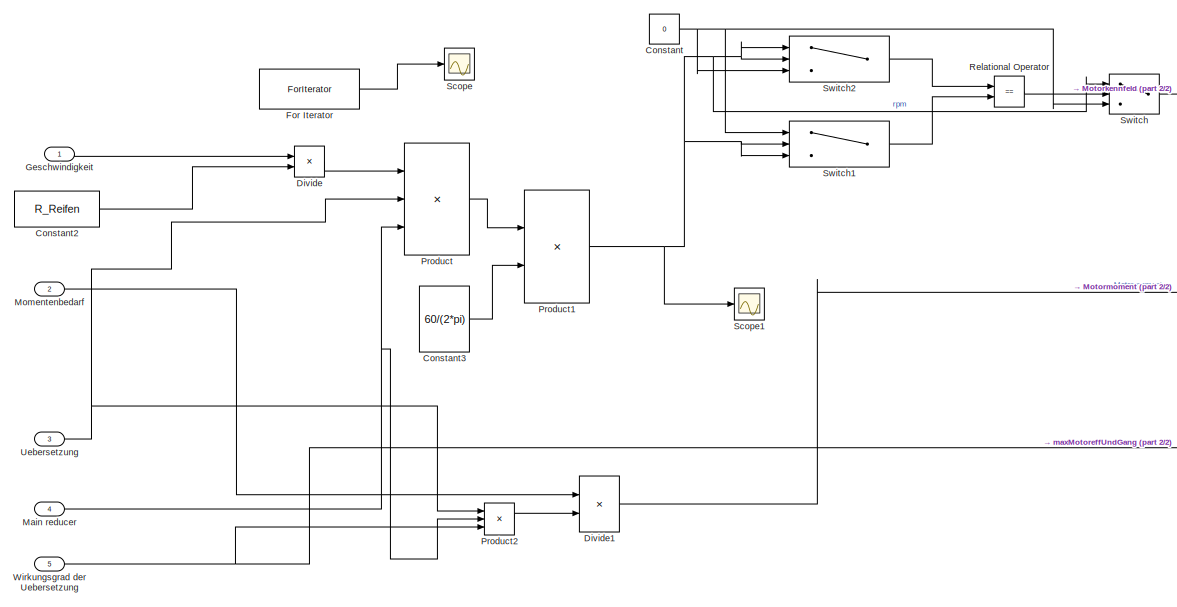
[diagram: Wirkungsgradbestimmung/Wirkungsgradberechnungen - part 1/2, left side, full height]
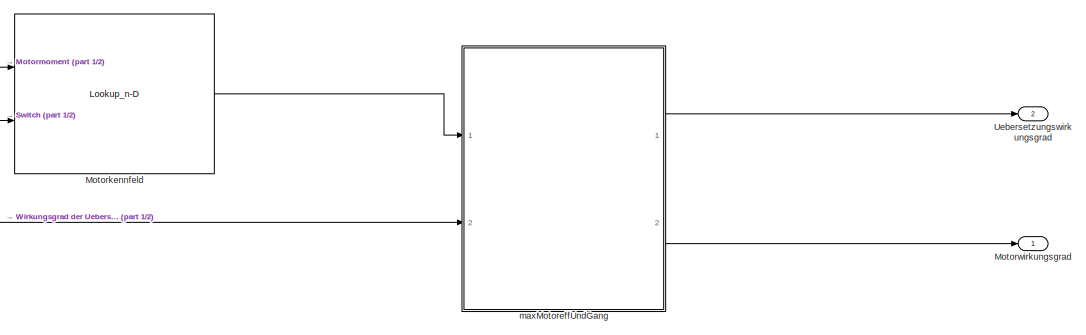
[diagram: Wirkungsgradbestimmung/Wirkungsgradberechnungen - part 2/2, middle right region]
BLOCK [SubSystem] Wirkungsgradbestimmung/Wirkungsgradberechnungen
  Commented = on
  Ports = [5, 2]
  RequestExecContextInheritance = off
  TreatAsAtomicUnit = on
BLOCK [Constant] Wirkungsgradbestimmung/Wirkungsgradberechnungen/Constant
  Value = 0
BLOCK [Constant] Wirkungsgradbestimmung/Wirkungsgradberechnungen/Constant2
  Value = R_Reifen
BLOCK [Constant] Wirkungsgradbestimmung/Wirkungsgradberechnungen/Constant3
  Value = 60/(2*pi)
BLOCK [Product] Wirkungsgradbestimmung/Wirkungsgradberechnungen/Divide
  Inputs = */
  Ports = [2, 1]
BLOCK [Product] Wirkungsgradbestimmung/Wirkungsgradberechnungen/Divide1
  Inputs = */
  Ports = [2, 1]
BLOCK [ForIterator] Wirkungsgradbestimmung/Wirkungsgradberechnungen/For Iterator
  IterationLimit = 4
  Ports = [0, 1]
BLOCK [Inport] Wirkungsgradbestimmung/Wirkungsgradberechnungen/Geschwindigkeit
BLOCK [Inport] Wirkungsgradbestimmung/Wirkungsgradberechnungen/Main reducer
  Port = 4
BLOCK [Inport] Wirkungsgradbestimmung/Wirkungsgradberechnungen/Momentenbedarf
  Port = 2
BLOCK [Lookup_n-D] Wirkungsgradbestimmung/Wirkungsgradberechnungen/Motorkennfeld
  BreakpointsForDimension1 = [1:86]
  BreakpointsForDimension2 = [1:251]
  InputPortMap = u0,u1
  InternalRulePriority = Speed
  Ports = [2, 1]
  RndMeth = Simplest
  Table = kennfeld
BLOCK [Outport] Wirkungsgradbestimmung/Wirkungsgradberechnungen/Motorwirkungsgrad
BLOCK [Product] Wirkungsgradbestimmung/Wirkungsgradberechnungen/Product
  Inputs = 3
  Ports = [3, 1]
BLOCK [Product] Wirkungsgradbestimmung/Wirkungsgradberechnungen/Product1
  Ports = [2, 1]
BLOCK [Product] Wirkungsgradbestimmung/Wirkungsgradberechnungen/Product2
  Inputs = 3
  Ports = [3, 1]
BLOCK [RelationalOperator] Wirkungsgradbestimmung/Wirkungsgradberechnungen/Relational Operator
  InputSameDT = off
  Operator = ==
  OutDataTypeStr = boolean
  Ports = [2, 1]
  RndMeth = Simplest
BLOCK [Scope] Wirkungsgradbestimmung/Wirkungsgradberechnungen/Scope
  Floating = off
  NumInputPorts = 1
  Ports = [1]
  ScopeSpecificationString = Simulink.scopes.TimeScopeBlockCfg('CurrentConfiguration', extmgr.ConfigurationSet(extmgr.Configuration('Core','General UI',true),extmgr.Configuration('Core','Source UI',true),extmgr.Configuration('Sources','WiredSimulink',true,'DataLoggingVariableName','ScopeData1'),extmgr.Configuration('Visuals','Time Domain',true),extmgr.Configuration('Tools','Plot Navigation',true),extmgr.Configuration('Tools',...<+40ch>
BLOCK [Scope] Wirkungsgradbestimmung/Wirkungsgradberechnungen/Scope1
  Floating = off
  NumInputPorts = 1
  Ports = [1]
  ScopeSpecificationString = Simulink.scopes.TimeScopeBlockCfg('CurrentConfiguration', extmgr.ConfigurationSet(extmgr.Configuration('Core','General UI',true),extmgr.Configuration('Core','Source UI',true),extmgr.Configuration('Sources','WiredSimulink',true,'DataLoggingVariableName','ScopeData1'),extmgr.Configuration('Visuals','Time Domain',true),extmgr.Configuration('Tools','Plot Navigation',true),extmgr.Configuration('Tools',...<+40ch>
BLOCK [Switch] Wirkungsgradbestimmung/Wirkungsgradberechnungen/Switch
  Criteria = u2 ~= 0
  InputSameDT = off
  SaturateOnIntegerOverflow = off
  Threshold = 1
BLOCK [Switch] Wirkungsgradbestimmung/Wirkungsgradberechnungen/Switch1
  Criteria = u2 > Threshold
  InputSameDT = off
  SaturateOnIntegerOverflow = off
  Threshold = 2500
BLOCK [Switch] Wirkungsgradbestimmung/Wirkungsgradberechnungen/Switch2
  InputSameDT = off
  SaturateOnIntegerOverflow = off
BLOCK [Inport] Wirkungsgradbestimmung/Wirkungsgradberechnungen/Uebersetzung
  Port = 3
BLOCK [Outport] Wirkungsgradbestimmung/Wirkungsgradberechnungen/Uebersetzungswirkungsgrad
  Port = 2
BLOCK [Inport] Wirkungsgradbestimmung/Wirkungsgradberechnungen/Wirkungsgrad der Uebersetzung
  Port = 5
BLOCK [SubSystem] Wirkungsgradbestimmung/Wirkungsgradberechnungen/maxMotoreffUndGang
  ErrorFcn = Stateflow.Translate.translate
  PermitHierarchicalResolution = ExplicitOnly
  Ports = [2, 2]
  RequestExecContextInheritance = off
  SFBlockType = MATLAB Function
  TreatAsAtomicUnit = on
BLOCK [Demux] Wirkungsgradbestimmung/Wirkungsgradberechnungen/maxMotoreffUndGang/ Demux 
  Outputs = 1
  Ports = [1, 1]
BLOCK [S-Function] Wirkungsgradbestimmung/Wirkungsgradberechnungen/maxMotoreffUndGang/ SFunction 
  EnableBusSupport = on
  FunctionName = sf_sfun
  PortCounts = [2 3]
  Ports = [2, 3]
  SFcnIsStateOwnerBlock = off
  SFunctionDeploymentMode = off
  Tag = Stateflow S-Function 4
BLOCK [Terminator] Wirkungsgradbestimmung/Wirkungsgradberechnungen/maxMotoreffUndGang/ Terminator 
BLOCK [Outport] Wirkungsgradbestimmung/Wirkungsgradberechnungen/maxMotoreffUndGang/eta_Getriebe
BLOCK [Outport] Wirkungsgradbestimmung/Wirkungsgradberechnungen/maxMotoreffUndGang/eta_Motor
  Port = 2
BLOCK [Inport] Wirkungsgradbestimmung/Wirkungsgradberechnungen/maxMotoreffUndGang/getriebeeffizienz
  Port = 2
BLOCK [Inport] Wirkungsgradbestimmung/Wirkungsgradberechnungen/maxMotoreffUndGang/motoreffizienz
BLOCK [SubSystem] Wirkungsgradbestimmung/maxMotoreffUndGang
  Commented = on
  ErrorFcn = Stateflow.Translate.translate
  PermitHierarchicalResolution = ExplicitOnly
  Ports = [2, 2]
  RequestExecContextInheritance = off
  SFBlockType = MATLAB Function
  TreatAsAtomicUnit = on
BLOCK [Demux] Wirkungsgradbestimmung/maxMotoreffUndGang/ Demux 
  Outputs = 1
  Ports = [1, 1]
BLOCK [S-Function] Wirkungsgradbestimmung/maxMotoreffUndGang/ SFunction 
  EnableBusSupport = on
  FunctionName = sf_sfun
  PortCounts = [2 3]
  Ports = [2, 3]
  SFcnIsStateOwnerBlock = off
  SFunctionDeploymentMode = off
  Tag = Stateflow S-Function 5
BLOCK [Terminator] Wirkungsgradbestimmung/maxMotoreffUndGang/ Terminator 
BLOCK [Outport] Wirkungsgradbestimmung/maxMotoreffUndGang/eta_Getriebe
BLOCK [Outport] Wirkungsgradbestimmung/maxMotoreffUndGang/eta_Motor
  Port = 2
BLOCK [Inport] Wirkungsgradbestimmung/maxMotoreffUndGang/getriebeeffizienz
  Port = 2
BLOCK [Inport] Wirkungsgradbestimmung/maxMotoreffUndGang/motoreffizienz
BLOCK [Lookup_n-D] Wirkungsgradbestimmung/torque converter efficiency
  BreakpointsForDimension1 = torque_outputDivInput
  InputPortMap = u0
  InternalRulePriority = Speed
  NumberOfTableDimensions = 1
  Ports = [1, 1]
  RndMeth = Simplest
  Table = converter_eff
BLOCK [Constant] Wirkungsgradbestimmung/Übersetzungen der Getriebe
  Value = i_getriebe
ANNOTATION Mechanik/Kraft und Momentenbedarf/Beschleunigungswiderstand: Massenzuschlagfaktor
ANNOTATION Mechanik/Kraft und Momentenbedarf/Beschleunigungswiderstand: F_acc (t)=(1+λ)∙M∙acc(t)
ANNOTATION Mechanik/Kraft und Momentenbedarf/Luftwiderstand: F_l (t)=1/2 ρ_l∙A_f∙ C_d∙V(t)^2
ANNOTATION Mechanik/Kraft und Momentenbedarf/Rollwiderstand: F_r (t)=C_r (V(t))∙M∙g∙cos⁡(α)
ANNOTATION Mechanik/Kraft und Momentenbedarf/Steigungswiderstand: F_st (t)=M∙g∙sin⁡(α)
NET Add:1 -> Integrator:1, Scope5:1, To Workspace2:1
NET Constant:1 -> Add:3, To Workspace5:1
NET Derivative:1 -> MATLAB Function1:4, MATLAB Function:3
LINE Energieverbrauch/Divide:1 -> Energieverbrauch/Leistungsverbrauch:1
LINE Energieverbrauch/Getriebeeffizienz:1 -> Energieverbrauch/Product:1
LINE Energieverbrauch/Leistungsbedarf:1 -> Energieverbrauch/Divide:1
LINE Energieverbrauch/Motoreffizienz:1 -> Energieverbrauch/Product:2
LINE Energieverbrauch/Product:1 -> Energieverbrauch/Divide:2
NET Energieverbrauch:1 -> MATLAB Function1:3, Scope:1, To Workspace1:1
NET From Workspace:1 -> Derivative:1, Integrator1:1, MATLAB Function1:1, MATLAB Function:2, Mechanik:1, Scope3:1, To Workspace:1, Wirkungsgradbestimmung:1
LINE Integrator1:1 -> Scope9:1
LINE Integrator:1 -> Scope8:1
NET MATLAB Function1:1 -> Add:1, Scope6:1
NET MATLAB Function1:2 -> Scope7:1, To Workspace4:1
NET MATLAB Function:1 -> Add:2, Scope4:1, To Workspace3:1
NET Mechanik/Geschwindigkeit:1 -> Mechanik/Kraft und Momentenbedarf:1, Mechanik/Product:1
NET Mechanik/Kraft und Momentenbedarf/Add:1 -> Mechanik/Kraft und Momentenbedarf/F_Bedarf:1, Mechanik/Kraft und Momentenbedarf/Product:1
LINE Mechanik/Kraft und Momentenbedarf/Beschleunigungswiderstand/Add1:1 -> Mechanik/Kraft und Momentenbedarf/Beschleunigungswiderstand/Product1:3
LINE Mechanik/Kraft und Momentenbedarf/Beschleunigungswiderstand/Add:1 -> Mechanik/Kraft und Momentenbedarf/Beschleunigungswiderstand/Product1:2
LINE Mechanik/Kraft und Momentenbedarf/Beschleunigungswiderstand/Constant:1 -> Mechanik/Kraft und Momentenbedarf/Beschleunigungswiderstand/Add1:1
NET Mechanik/Kraft und Momentenbedarf/Beschleunigungswiderstand/Derivative:1 -> Mechanik/Kraft und Momentenbedarf/Beschleunigungswiderstand/Product1:1, Mechanik/Kraft und Momentenbedarf/Beschleunigungswiderstand/Scope1:1
LINE Mechanik/Kraft und Momentenbedarf/Beschleunigungswiderstand/From Workspace:1 -> Mechanik/Kraft und Momentenbedarf/Beschleunigungswiderstand/Product:2
LINE Mechanik/Kraft und Momentenbedarf/Beschleunigungswiderstand/Geschwindikeit:1 -> Mechanik/Kraft und Momentenbedarf/Beschleunigungswiderstand/Derivative:1
LINE Mechanik/Kraft und Momentenbedarf/Beschleunigungswiderstand/Masse Bus:1 -> Mechanik/Kraft und Momentenbedarf/Beschleunigungswiderstand/Add:1
LINE Mechanik/Kraft und Momentenbedarf/Beschleunigungswiderstand/Masse Fahrgast:1 -> Mechanik/Kraft und Momentenbedarf/Beschleunigungswiderstand/Product:1
NET Mechanik/Kraft und Momentenbedarf/Beschleunigungswiderstand/Product1:1 -> Mechanik/Kraft und Momentenbedarf/Beschleunigungswiderstand/F_acc:1, Mechanik/Kraft und Momentenbedarf/Beschleunigungswiderstand/Scope:1
LINE Mechanik/Kraft und Momentenbedarf/Beschleunigungswiderstand/Product:1 -> Mechanik/Kraft und Momentenbedarf/Beschleunigungswiderstand/Add:2
LINE Mechanik/Kraft und Momentenbedarf/Beschleunigungswiderstand/Äquivalente Masse:1 -> Mechanik/Kraft und Momentenbedarf/Beschleunigungswiderstand/Add1:2
LINE Mechanik/Kraft und Momentenbedarf/Beschleunigungswiderstand:1 -> Mechanik/Kraft und Momentenbedarf/Add:4
LINE Mechanik/Kraft und Momentenbedarf/Constant:1 -> Mechanik/Kraft und Momentenbedarf/Product:2
NET Mechanik/Kraft und Momentenbedarf/From Workspace:1 -> Mechanik/Kraft und Momentenbedarf/Rollwiderstand:1, Mechanik/Kraft und Momentenbedarf/Steigungswiderstand:1
NET Mechanik/Kraft und Momentenbedarf/Geschwindigkeit:1 -> Mechanik/Kraft und Momentenbedarf/Beschleunigungswiderstand:1, Mechanik/Kraft und Momentenbedarf/Luftwiderstand:1
LINE Mechanik/Kraft und Momentenbedarf/Luftwiderstand/Constant3:1 -> Mechanik/Kraft und Momentenbedarf/Luftwiderstand/Product:5
LINE Mechanik/Kraft und Momentenbedarf/Luftwiderstand/Fahrzeugbreite inkl. Spiegel:1 -> Mechanik/Kraft und Momentenbedarf/Luftwiderstand/Projizierte Fläche:4
LINE Mechanik/Kraft und Momentenbedarf/Luftwiderstand/Fahrzeugbreite ohne Spiegel:1 -> Mechanik/Kraft und Momentenbedarf/Luftwiderstand/Projizierte Fläche:3
LINE Mechanik/Kraft und Momentenbedarf/Luftwiderstand/Fahrzeughöhe:1 -> Mechanik/Kraft und Momentenbedarf/Luftwiderstand/Projizierte Fläche:1
LINE Mechanik/Kraft und Momentenbedarf/Luftwiderstand/Geschwindigkeit:1 -> Mechanik/Kraft und Momentenbedarf/Luftwiderstand/Square:1
LINE Mechanik/Kraft und Momentenbedarf/Luftwiderstand/Luftdichte:1 -> Mechanik/Kraft und Momentenbedarf/Luftwiderstand/Product:2
LINE Mechanik/Kraft und Momentenbedarf/Luftwiderstand/Luftdruck:1 -> Mechanik/Kraft und Momentenbedarf/Luftwiderstand/Luftdichte:3
LINE Mechanik/Kraft und Momentenbedarf/Luftwiderstand/Luftwiderstandsbeiwert:1 -> Mechanik/Kraft und Momentenbedarf/Luftwiderstand/Product:4
LINE Mechanik/Kraft und Momentenbedarf/Luftwiderstand/Podesthöhe:1 -> Mechanik/Kraft und Momentenbedarf/Luftwiderstand/Projizierte Fläche:2
NET Mechanik/Kraft und Momentenbedarf/Luftwiderstand/Product:1 -> Mechanik/Kraft und Momentenbedarf/Luftwiderstand/F_l:1, Mechanik/Kraft und Momentenbedarf/Luftwiderstand/Scope:1
LINE Mechanik/Kraft und Momentenbedarf/Luftwiderstand/Projizierte Fläche:1 -> Mechanik/Kraft und Momentenbedarf/Luftwiderstand/Product:3
LINE Mechanik/Kraft und Momentenbedarf/Luftwiderstand/Square:1 -> Mechanik/Kraft und Momentenbedarf/Luftwiderstand/Product:1
LINE Mechanik/Kraft und Momentenbedarf/Luftwiderstand/Taupunkt:1 -> Mechanik/Kraft und Momentenbedarf/Luftwiderstand/Luftdichte:2
LINE Mechanik/Kraft und Momentenbedarf/Luftwiderstand/Temperatur:1 -> Mechanik/Kraft und Momentenbedarf/Luftwiderstand/Luftdichte:1
LINE Mechanik/Kraft und Momentenbedarf/Luftwiderstand:1 -> Mechanik/Kraft und Momentenbedarf/Add:1
NET Mechanik/Kraft und Momentenbedarf/Product:1 -> Mechanik/Kraft und Momentenbedarf/Scope:1, Mechanik/Kraft und Momentenbedarf/T_bedarf:1
LINE Mechanik/Kraft und Momentenbedarf/Rollwiderstand/Add:1 -> Mechanik/Kraft und Momentenbedarf/Rollwiderstand/Product:4
LINE Mechanik/Kraft und Momentenbedarf/Rollwiderstand/Erdbeschleunigung:1 -> Mechanik/Kraft und Momentenbedarf/Rollwiderstand/Product:2
LINE Mechanik/Kraft und Momentenbedarf/Rollwiderstand/From Workspace:1 -> Mechanik/Kraft und Momentenbedarf/Rollwiderstand/Product1:2
LINE Mechanik/Kraft und Momentenbedarf/Rollwiderstand/Masse Fahrgast:1 -> Mechanik/Kraft und Momentenbedarf/Rollwiderstand/Product1:1
LINE Mechanik/Kraft und Momentenbedarf/Rollwiderstand/Masse von Fahrzeug:1 -> Mechanik/Kraft und Momentenbedarf/Rollwiderstand/Add:1
LINE Mechanik/Kraft und Momentenbedarf/Rollwiderstand/Product1:1 -> Mechanik/Kraft und Momentenbedarf/Rollwiderstand/Add:2
NET Mechanik/Kraft und Momentenbedarf/Rollwiderstand/Product:1 -> Mechanik/Kraft und Momentenbedarf/Rollwiderstand/F_r:1, Mechanik/Kraft und Momentenbedarf/Rollwiderstand/Scope:1
LINE Mechanik/Kraft und Momentenbedarf/Rollwiderstand/Rollwiderstandsbeiwert:1 -> Mechanik/Kraft und Momentenbedarf/Rollwiderstand/Product:1
LINE Mechanik/Kraft und Momentenbedarf/Rollwiderstand/Steigung:1 -> Mechanik/Kraft und Momentenbedarf/Rollwiderstand/Trigonometric Function:1
LINE Mechanik/Kraft und Momentenbedarf/Rollwiderstand/Trigonometric Function:1 -> Mechanik/Kraft und Momentenbedarf/Rollwiderstand/Product:3
LINE Mechanik/Kraft und Momentenbedarf/Rollwiderstand:1 -> Mechanik/Kraft und Momentenbedarf/Add:2
LINE Mechanik/Kraft und Momentenbedarf/Steigungswiderstand/Add:1 -> Mechanik/Kraft und Momentenbedarf/Steigungswiderstand/Product1:1
LINE Mechanik/Kraft und Momentenbedarf/Steigungswiderstand/Constant:1 -> Mechanik/Kraft und Momentenbedarf/Steigungswiderstand/Product1:2
LINE Mechanik/Kraft und Momentenbedarf/Steigungswiderstand/From Workspace:1 -> Mechanik/Kraft und Momentenbedarf/Steigungswiderstand/Product:2
LINE Mechanik/Kraft und Momentenbedarf/Steigungswiderstand/Masse Bus:1 -> Mechanik/Kraft und Momentenbedarf/Steigungswiderstand/Add:1
LINE Mechanik/Kraft und Momentenbedarf/Steigungswiderstand/Masse Fahrgast:1 -> Mechanik/Kraft und Momentenbedarf/Steigungswiderstand/Product:1
NET Mechanik/Kraft und Momentenbedarf/Steigungswiderstand/Product1:1 -> Mechanik/Kraft und Momentenbedarf/Steigungswiderstand/F_st:1, Mechanik/Kraft und Momentenbedarf/Steigungswiderstand/Scope:1
LINE Mechanik/Kraft und Momentenbedarf/Steigungswiderstand/Product:1 -> Mechanik/Kraft und Momentenbedarf/Steigungswiderstand/Add:2
LINE Mechanik/Kraft und Momentenbedarf/Steigungswiderstand/Steigung:1 -> Mechanik/Kraft und Momentenbedarf/Steigungswiderstand/Trigonometric Function:1
NET Mechanik/Kraft und Momentenbedarf/Steigungswiderstand/Trigonometric Function:1 -> Mechanik/Kraft und Momentenbedarf/Steigungswiderstand/Product1:3, Mechanik/Kraft und Momentenbedarf/Steigungswiderstand/Scope1:1
LINE Mechanik/Kraft und Momentenbedarf/Steigungswiderstand:1 -> Mechanik/Kraft und Momentenbedarf/Add:3
LINE Mechanik/Kraft und Momentenbedarf:1 -> Mechanik/Product:2
LINE Mechanik/Kraft und Momentenbedarf:2 -> Mechanik/Momentenbedarf:1
LINE Mechanik/Product:1 -> Mechanik/Leistungsbedarf:1
LINE Mechanik:1 -> Energieverbrauch:1
NET Mechanik:2 -> MATLAB Function1:2, MATLAB Function:1, Wirkungsgradbestimmung:2
LINE Wirkungsgradbestimmung/1-D Lookup Table:1 -> Wirkungsgradbestimmung/Product1:1
LINE Wirkungsgradbestimmung/BSFC:1 -> Wirkungsgradbestimmung/Product:1
NET Wirkungsgradbestimmung/Bestimmung Betriebspunkt:1 -> Wirkungsgradbestimmung/MATLAB Function2:1, Wirkungsgradbestimmung/Output//Input Drehzahlen:2, Wirkungsgradbestimmung/To Workspace4:1
NET Wirkungsgradbestimmung/Bestimmung Betriebspunkt:2 -> Wirkungsgradbestimmung/Drehmoment Fallunterscheidung:3, Wirkungsgradbestimmung/Product1:2, Wirkungsgradbestimmung/To Workspace5:1
NET Wirkungsgradbestimmung/Bestimmung Betriebspunkt:3 -> Wirkungsgradbestimmung/Drehmoment Fallunterscheidung:2, Wirkungsgradbestimmung/Gangwirkungsgrad Fallunterscheidung:2
LINE Wirkungsgradbestimmung/Constant:1 -> Wirkungsgradbestimmung/Divide:1
NET Wirkungsgradbestimmung/Differentialuebersetzung:1 -> Wirkungsgradbestimmung/Motordrehzahlen:3, Wirkungsgradbestimmung/Motormomenten:2
LINE Wirkungsgradbestimmung/Divide:1 -> Wirkungsgradbestimmung/Maximaleffizienz:2
LINE Wirkungsgradbestimmung/Drehmoment Fallunterscheidung:1 -> Wirkungsgradbestimmung/MATLAB Function3:1
NET Wirkungsgradbestimmung/Gangeffizienz:1 -> Wirkungsgradbestimmung/Gangwirkungsgrad Fallunterscheidung:3, Wirkungsgradbestimmung/Motormomenten:4
LINE Wirkungsgradbestimmung/Gangwirkungsgrad Fallunterscheidung:1 -> Wirkungsgradbestimmung/Maximaleffizienz:1
LINE Wirkungsgradbestimmung/Geschwindigkeit:1 -> Wirkungsgradbestimmung/Motordrehzahlen:1
LINE Wirkungsgradbestimmung/Heizwert Diesel:1 -> Wirkungsgradbestimmung/Product:2
NET Wirkungsgradbestimmung/MATLAB Function2:1 -> Wirkungsgradbestimmung/BSFC:2, Wirkungsgradbestimmung/Scope1:1
NET Wirkungsgradbestimmung/MATLAB Function3:1 -> Wirkungsgradbestimmung/BSFC:1, Wirkungsgradbestimmung/Scope2:1
LINE Wirkungsgradbestimmung/MATLAB Function:1 -> Wirkungsgradbestimmung/Motorkennfeld:1
LINE Wirkungsgradbestimmung/MATLAB Function:2 -> Wirkungsgradbestimmung/Motorkennfeld:2
NET Wirkungsgradbestimmung/Maximaleffizienz:1 -> Wirkungsgradbestimmung/Scope:1, Wirkungsgradbestimmung/To Workspace1:1
LINE Wirkungsgradbestimmung/Maximaleffizienz:2 -> Wirkungsgradbestimmung/Getriebewirkungsgrad:1
NET Wirkungsgradbestimmung/Maximaleffizienz:3 -> Wirkungsgradbestimmung/Motorwirkungsgrad:1, Wirkungsgradbestimmung/To Workspace:1
LINE Wirkungsgradbestimmung/Momentenbedarf:1 -> Wirkungsgradbestimmung/Motormomenten:3
LINE Wirkungsgradbestimmung/Motordrehzahlen/Gain1:1 -> Wirkungsgradbestimmung/Motordrehzahlen/Motordrehzahlen:1
LINE Wirkungsgradbestimmung/Motordrehzahlen/Gain:1 -> Wirkungsgradbestimmung/Motordrehzahlen/Product:1
LINE Wirkungsgradbestimmung/Motordrehzahlen/Geschwindigkeit:1 -> Wirkungsgradbestimmung/Motordrehzahlen/Gain:1
LINE Wirkungsgradbestimmung/Motordrehzahlen/Product:1 -> Wirkungsgradbestimmung/Motordrehzahlen/Gain1:1
LINE Wirkungsgradbestimmung/Motordrehzahlen/Uebersetzungen:1 -> Wirkungsgradbestimmung/Motordrehzahlen/Product:2
LINE Wirkungsgradbestimmung/Motordrehzahlen/mainReducer:1 -> Wirkungsgradbestimmung/Motordrehzahlen/Product:3
NET Wirkungsgradbestimmung/Motordrehzahlen:1 -> Wirkungsgradbestimmung/Bestimmung Betriebspunkt:1, Wirkungsgradbestimmung/Output//Input Drehzahlen:1, Wirkungsgradbestimmung/To Workspace2:1
LINE Wirkungsgradbestimmung/Motorkennfeld:1 -> Wirkungsgradbestimmung/maxMotoreffUndGang:1
LINE Wirkungsgradbestimmung/Motormomenten/Divide1:1 -> Wirkungsgradbestimmung/Motormomenten/Motormomenten:1
LINE Wirkungsgradbestimmung/Motormomenten/Momentenbedarf:1 -> Wirkungsgradbestimmung/Motormomenten/Divide1:1
LINE Wirkungsgradbestimmung/Motormomenten/Product2:1 -> Wirkungsgradbestimmung/Motormomenten/Divide1:2
LINE Wirkungsgradbestimmung/Motormomenten/Uebersezungen:1 -> Wirkungsgradbestimmung/Motormomenten/Product2:1
LINE Wirkungsgradbestimmung/Motormomenten/mainReducer:1 -> Wirkungsgradbestimmung/Motormomenten/Product2:2
LINE Wirkungsgradbestimmung/Motormomenten/uebersWirkungsgrade:1 -> Wirkungsgradbestimmung/Motormomenten/Product2:3
NET Wirkungsgradbestimmung/Motormomenten:1 -> Wirkungsgradbestimmung/Bestimmung Betriebspunkt:2, Wirkungsgradbestimmung/To Workspace3:1
NET Wirkungsgradbestimmung/Output//Input Drehzahlen:1 -> Wirkungsgradbestimmung/1-D Lookup Table:1, Wirkungsgradbestimmung/torque converter efficiency:1
LINE Wirkungsgradbestimmung/Product1:1 -> Wirkungsgradbestimmung/Drehmoment Fallunterscheidung:1
LINE Wirkungsgradbestimmung/Product:1 -> Wirkungsgradbestimmung/Divide:2
LINE Wirkungsgradbestimmung/Wirkungsgradberechnungen/Constant2:1 -> Wirkungsgradbestimmung/Wirkungsgradberechnungen/Divide:2
LINE Wirkungsgradbestimmung/Wirkungsgradberechnungen/Constant3:1 -> Wirkungsgradbestimmung/Wirkungsgradberechnungen/Product1:2
NET Wirkungsgradbestimmung/Wirkungsgradberechnungen/Constant:1 -> Wirkungsgradbestimmung/Wirkungsgradberechnungen/Switch1:1, Wirkungsgradbestimmung/Wirkungsgradberechnungen/Switch2:3, Wirkungsgradbestimmung/Wirkungsgradberechnungen/Switch:3
LINE Wirkungsgradbestimmung/Wirkungsgradberechnungen/Divide1:1 -> Wirkungsgradbestimmung/Wirkungsgradberechnungen/Motorkennfeld:1
LINE Wirkungsgradbestimmung/Wirkungsgradberechnungen/Divide:1 -> Wirkungsgradbestimmung/Wirkungsgradberechnungen/Product:1
LINE Wirkungsgradbestimmung/Wirkungsgradberechnungen/For Iterator:1 -> Wirkungsgradbestimmung/Wirkungsgradberechnungen/Scope:1
LINE Wirkungsgradbestimmung/Wirkungsgradberechnungen/Geschwindigkeit:1 -> Wirkungsgradbestimmung/Wirkungsgradberechnungen/Divide:1
NET Wirkungsgradbestimmung/Wirkungsgradberechnungen/Main reducer:1 -> Wirkungsgradbestimmung/Wirkungsgradberechnungen/Product2:2, Wirkungsgradbestimmung/Wirkungsgradberechnungen/Product:3
LINE Wirkungsgradbestimmung/Wirkungsgradberechnungen/Momentenbedarf:1 -> Wirkungsgradbestimmung/Wirkungsgradberechnungen/Divide1:1
LINE Wirkungsgradbestimmung/Wirkungsgradberechnungen/Motorkennfeld:1 -> Wirkungsgradbestimmung/Wirkungsgradberechnungen/maxMotoreffUndGang:1
NET Wirkungsgradbestimmung/Wirkungsgradberechnungen/Product1:1 -> Wirkungsgradbestimmung/Wirkungsgradberechnungen/Scope1:1, Wirkungsgradbestimmung/Wirkungsgradberechnungen/Switch1:2, Wirkungsgradbestimmung/Wirkungsgradberechnungen/Switch1:3, Wirkungsgradbestimmung/Wirkungsgradberechnungen/Switch2:1, Wirkungsgradbestimmung/Wirkungsgradberechnungen/Switch2:2, Wirkungsgradbestimmung/Wirkungsgradberechnungen/Switch:1
LINE Wirkungsgradbestimmung/Wirkungsgradberechnungen/Product2:1 -> Wirkungsgradbestimmung/Wirkungsgradberechnungen/Divide1:2
LINE Wirkungsgradbestimmung/Wirkungsgradberechnungen/Product:1 -> Wirkungsgradbestimmung/Wirkungsgradberechnungen/Product1:1
LINE Wirkungsgradbestimmung/Wirkungsgradberechnungen/Relational Operator:1 -> Wirkungsgradbestimmung/Wirkungsgradberechnungen/Switch:2
LINE Wirkungsgradbestimmung/Wirkungsgradberechnungen/Switch1:1 -> Wirkungsgradbestimmung/Wirkungsgradberechnungen/Relational Operator:2
LINE Wirkungsgradbestimmung/Wirkungsgradberechnungen/Switch2:1 -> Wirkungsgradbestimmung/Wirkungsgradberechnungen/Relational Operator:1
LINE Wirkungsgradbestimmung/Wirkungsgradberechnungen/Switch:1 -> Wirkungsgradbestimmung/Wirkungsgradberechnungen/Motorkennfeld:2
NET Wirkungsgradbestimmung/Wirkungsgradberechnungen/Uebersetzung:1 -> Wirkungsgradbestimmung/Wirkungsgradberechnungen/Product2:1, Wirkungsgradbestimmung/Wirkungsgradberechnungen/Product:2
NET Wirkungsgradbestimmung/Wirkungsgradberechnungen/Wirkungsgrad der Uebersetzung:1 -> Wirkungsgradbestimmung/Wirkungsgradberechnungen/Product2:3, Wirkungsgradbestimmung/Wirkungsgradberechnungen/maxMotoreffUndGang:2
LINE Wirkungsgradbestimmung/Wirkungsgradberechnungen/maxMotoreffUndGang:1 -> Wirkungsgradbestimmung/Wirkungsgradberechnungen/Uebersetzungswirkungsgrad:1
LINE Wirkungsgradbestimmung/Wirkungsgradberechnungen/maxMotoreffUndGang:2 -> Wirkungsgradbestimmung/Wirkungsgradberechnungen/Motorwirkungsgrad:1
LINE Wirkungsgradbestimmung/torque converter efficiency:1 -> Wirkungsgradbestimmung/Gangwirkungsgrad Fallunterscheidung:1
NET Wirkungsgradbestimmung/Übersetzungen der Getriebe:1 -> Wirkungsgradbestimmung/Motordrehzahlen:2, Wirkungsgradbestimmung/Motormomenten:1
NET Wirkungsgradbestimmung:1 -> Energieverbrauch:2, Scope1:1
NET Wirkungsgradbestimmung:2 -> Energieverbrauch:3, Scope2:1
note: NET lines group one-source signal fan-out (src -> all destinations, sorted); 1:1 wires keep LINE
CHART MATLAB Function1 states=1 transitions=1
  STATE_LABEL 'eML_blk_kernel()'
  STATE_LABEL 'SCRIPT:\nfunction [leistungsverbrauchUeberprueft, betriebspunktNOK] = ueberpruefeNaN(geschwindigkeit, motormoment, leistungsverbrauch, beschleunigung)\n\n    if isnan(leistungsverbrauch)\n        if (geschwindigkeit == 0 && beschleunigung == 0) || motormoment <= 0\n            leistungsverbrauchUeberprueft = 0;\n            betriebspunktNOK = 0;\n        else\n            betriebspunktNOK = 1;\n           ...<+169ch>'
CHART Mechanik/Kraft und Momentenbedarf/Luftwiderstand/Projizierte Fläche states=1 transitions=1
  STATE_LABEL 'eML_blk_kernel()'
  STATE_LABEL 'SCRIPT:\nfunction A_proj = projflaeche(fzHoehe, podesthoehe, fzBreite, fzBreiteInklSpiegel)\n\n    %Eingabe in Maske: mm\n    \n    A_proj1 = (fzHoehe-podesthoehe)*fzBreite;\n    \n    %Spiegelhöhe\n    spiegelHoehe = 400;\n    A_proj2 = (fzBreiteInklSpiegel-fzBreite)*spiegelHoehe;\n    \n    A_proj = A_proj1 + A_proj2;\n    \n    %Umrechung mm^2 in m^2;\n    \n    A_proj = A_proj * 10^-6;\n    \nend\n'
CHART Mechanik/Kraft und Momentenbedarf/Luftwiderstand/Luftdichte states=1 transitions=1
  STATE_LABEL 'eML_blk_kernel()'
  STATE_LABEL 'SCRIPT:\nfunction rho_l = luftdichte(temperatur, taupunkt, luftdruck)\n\n%Für Werte: https://kachelmannwetter.com/site/auswahl\n\n%Einheiten bei der Eingabemaske:\n%Druck: hPa\n%Temperatur: Celsius\n\n%Temperaturumrechnung\ntemperatur = temperatur + 273.15;\n\n\n\n%Konstanten aus https://www.gribble.org/cycling/air_density.html\nc0 = 0.99999683;\nc1 = -0.90826951e-2;\nc2 = 0.78736169e-4;\nc3 = -0.61117958e-6;\nc4 = ...<+636ch>'
CHART Wirkungsgradbestimmung/MATLAB Function states=1 transitions=1
  STATE_LABEL 'eML_blk_kernel()'
  STATE_LABEL 'SCRIPT:\nfunction [plausibleMotordrehzahlen, plausibleMotormomenten] = ueberpruefenDrehzahlDrehmoment(motordrehzahlen, motormomenten)\n    %Vorerzeugen der Vektoren mit plausiblen Daten\n    plausibleMotordrehzahlen = zeros(4,1);\n    plausibleMotormomenten = zeros(4,1);\n    for j = 1:4 %4 Gänge => 4 drehzahlen bzw. momenten\n        if motordrehzahlen(j)<=2500 && motordrehzahlen(j)>=800 && motormoment...<+374ch>'
CHART Wirkungsgradbestimmung/Wirkungsgradberechnungen/maxMotoreffUndGang states=1 transitions=1
  STATE_LABEL 'eML_blk_kernel()'
  STATE_LABEL 'SCRIPT:\nfunction [eta_Getriebe, eta_Motor] = wirkungsgradAuswahl(motoreffizienz, getriebeeffizienz)\n\nfor j = 2:length(motoreffizienz)\n    if motoreffizienz(j)>motoreffizienz(j-1)\n        index = j;\n    else\n        index = j-1;\n    end\nend\neta_Getriebe = getriebeeffizienz(index);\neta_Motor = motoreffizienz(index);\n'
CHART Wirkungsgradbestimmung/maxMotoreffUndGang states=1 transitions=1
  STATE_LABEL 'eML_blk_kernel()'
  STATE_LABEL 'SCRIPT:\nfunction [eta_Getriebe, eta_Motor] = wirkungsgradAuswahl(motoreffizienz, getriebeeffizienz)\n\nfor j = 2:length(motoreffizienz)\n    if motoreffizienz(j)>motoreffizienz(j-1)\n        index = j;\n    else\n        index = j-1;\n    end\nend\neta_Getriebe = getriebeeffizienz(index);\neta_Motor = motoreffizienz(index);\n'
CHART Wirkungsgradbestimmung/Bestimmung Betriebspunkt states=1 transitions=1
  STATE_LABEL 'eML_blk_kernel()'
  STATE_LABEL 'SCRIPT:\nfunction [istMotordrehzahlen, istMotormomenten, hydrodynkuppl]  = betriebspunktBestimmungen(sollMotordrehzahlen, sollMotormomenten)\n    \n    %Mindestdrehzahlbestimmung \n    \n    if sollMotordrehzahlen(1) < 800\n        istMotordrehzahlen = zeros(length(sollMotordrehzahlen),1);\n        %Für den Fall, dass sogar erster Gang die notwendige\n        %Motordrehzahl nicht erreichen kann\n        %A...<+1519ch>'
CHART Wirkungsgradbestimmung/Maximaleffizienz states=1 transitions=1
  STATE_LABEL 'eML_blk_kernel()'
  STATE_LABEL 'SCRIPT:\nfunction [gang, gangeffizienz, motoreffizienz]= maxEff(gangeffizienzen, motoreffizienzen)\n\n    %Für die ermittelten Motoreffizienzen (bei 4 Gänge => 4) wird das\n    %Maximum bestimmt. Außerdem wird der zugehörige Gang ermittelt und der\n    %entsprechende Wirkungsgrad\n    \n    [motoreffizienz, maxIndex] = max(motoreffizienzen);\n    \n    gang = maxIndex;\n    gangeffizienz = gangeffizienzen(m...<+19ch>'
CHART Wirkungsgradbestimmung/MATLAB Function3 states=1 transitions=1
  STATE_LABEL 'eML_blk_kernel()'
  STATE_LABEL 'SCRIPT:\nfunction skalierteIstMotormomenten = skalierungMoment(istMotormomenten)\n\n    %Motormomentbereich des verwendeten Kennfelds \n    %torqueBereichKennfeld = [minKennfeldTorque; maxKennfeldTorque]\n    %Einheit: Nm\n    %----------!!!Anpassungsbedarf!!!-----------\n    minKennfeldTorque = 1;\n    maxKennfeldTorque = 91;\n    \n    torqueBereichKennfeld = maxKennfeldTorque - minKennfeldTorque;\n    \n  ...<+379ch>'
CHART Wirkungsgradbestimmung/MATLAB Function2 states=1 transitions=1
  STATE_LABEL 'eML_blk_kernel()'
  STATE_LABEL 'SCRIPT:\nfunction skalierteIstMotordrehzahlen  = skalierungDrehzahl(istMotordrehzahlen)\n\n    %Drehzahlenbereich des verwendeten Kennfelds \n    %rpmBereichKennfeld = [minKennfeldRPM; maxKennfeldRPM]\n    %Einheit: U/min\n    %----------!!!Anpassungsbedarf!!!-----------\n    minKennfeldRPM = 1;\n    maxKennfeldRPM = 166;\n    \n    rpmBereichKennfeld = maxKennfeldRPM - minKennfeldRPM;\n    \n    \n    %Drehza...<+336ch>'
CHART MATLAB Function states=1 transitions=1
  STATE_LABEL 'eML_blk_kernel()'
  STATE_LABEL 'SCRIPT:\nfunction leerlaufVerbrauch = leerlaufVerbrauch(momentenbedarf,geschwindigkeit, beschleunigung)\n\n    if (geschwindigkeit == 0 && beschleunigung == 0) || momentenbedarf <= 0\n        leerlaufVerbrauch = 10.71e3;\n    else\n        leerlaufVerbrauch = 0;\n    end\n\nend'
CHART  states=0 transitions=0
CHART  states=0 transitions=0
CHART  states=0 transitions=0
CHART  states=0 transitions=0
CHART  states=0 transitions=0
CHART  states=0 transitions=0
CHART  states=0 transitions=0
CHART  states=0 transitions=0
CHART  states=0 transitions=0
CHART  states=0 transitions=0
CHART  states=0 transitions=0
